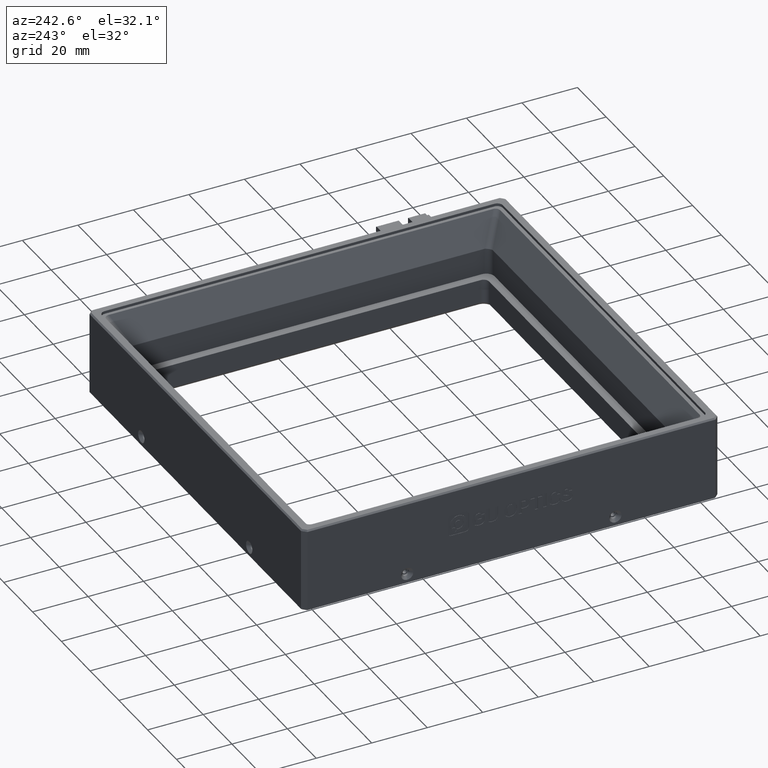
[diagram: clean part render]
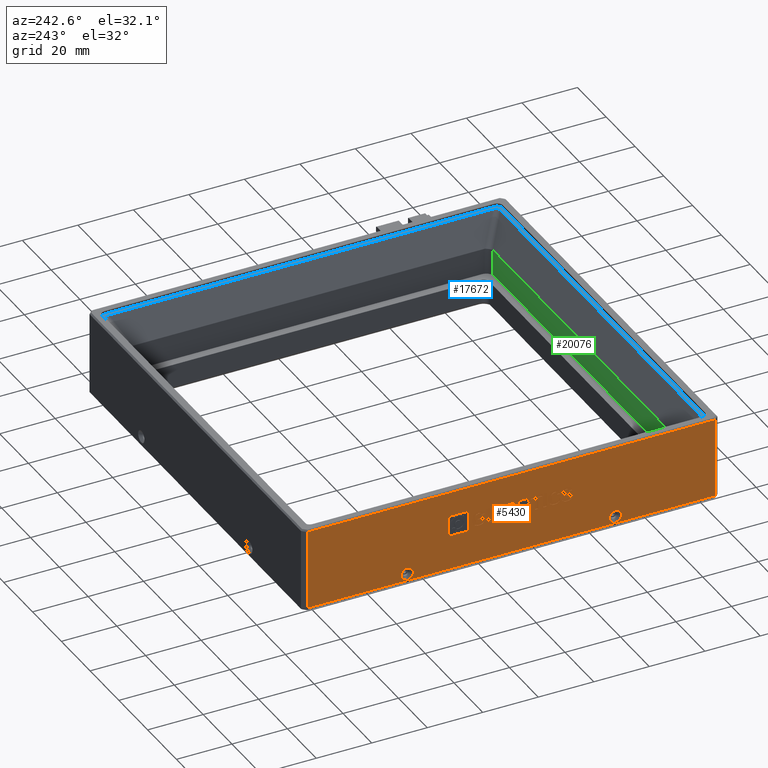
[diagram: same view with three faces highlighted in distinct colors, each labeled with its STEP entity id]
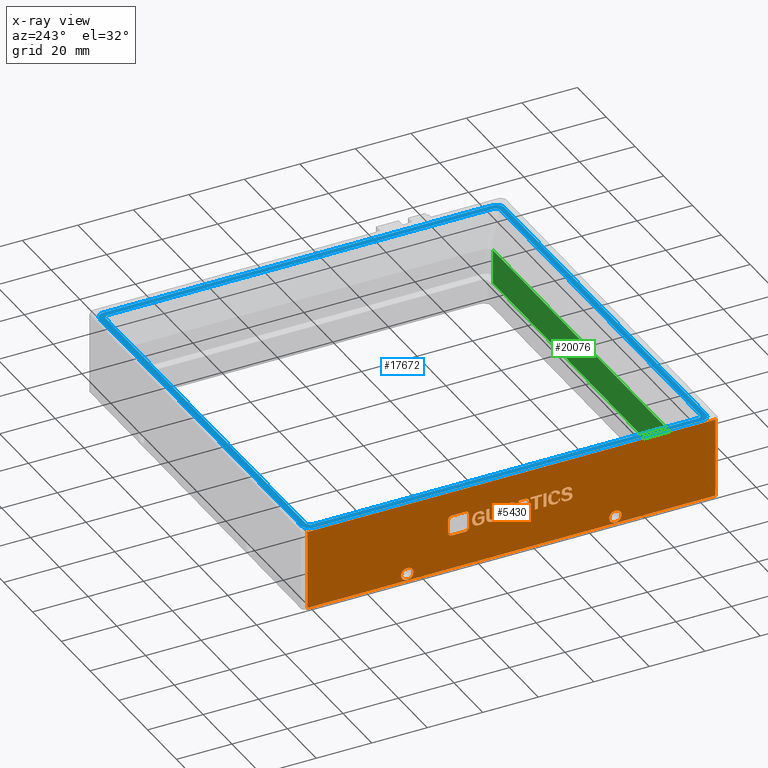
[diagram: x-ray of the same camera — body ghosted, the three highlighted faces saturated]
A machine part, auxiliary view with three faces highlighted in distinct colors.
The next image is the same camera in x-ray (body ghosted, the three faces saturated) — at least one of them is partly hidden behind the body in this view.
Their STEP definitions:

[orange] entity #5430 — the highlighted planar face has unit normal (1, -0, -0).
#31 = EDGE_CURVE ( 'NONE', #19384, #825, #15403, .T. ) ;
#94 = EDGE_LOOP ( 'NONE', ( #16986, #6992, #12238, #1950, #13257, #4764, #12222, #10624, #17987, #6341 ) ) ;
#105 = CARTESIAN_POINT ( 'NONE',  ( -84.83175061932287500, 13.25622952853821000, 13.67176819881195400 ) ) ;
#155 = ORIENTED_EDGE ( 'NONE', *, *, #5407, .F. ) ;
#157 = B_SPLINE_CURVE_WITH_KNOTS ( 'NONE', 3,
 ( #11757, #13151, #10606, #15329 ),
 .UNSPECIFIED., .F., .F.,
 ( 4, 4 ),
 ( 5.000000000000000000, 6.000000000000000000 ),
 .UNSPECIFIED. ) ;
#171 = CARTESIAN_POINT ( 'NONE',  ( -84.83175061932287500, 12.48229767348139800, 14.53987257955830600 ) ) ;
#191 = EDGE_CURVE ( 'NONE', #11709, #4064, #4574, .T. ) ;
#205 = FACE_BOUND ( 'NONE', #1702, .T. ) ;
#234 = VECTOR ( 'NONE', #2480, 1000.000000000000000 ) ;
#244 = EDGE_CURVE ( 'NONE', #7575, #7293, #15918, .T. ) ;
#247 = CARTESIAN_POINT ( 'NONE',  ( -84.83175061932287500, 11.00704077786217100, 14.60200075695144900 ) ) ;
#281 = CARTESIAN_POINT ( 'NONE',  ( -84.83175061932287500, 20.71215164860318200, 9.811303082532953500 ) ) ;
#282 = CARTESIAN_POINT ( 'NONE',  ( -84.83175061932287500, -11.12208307286800300, 13.04386122206766700 ) ) ;
#286 = CARTESIAN_POINT ( 'NONE',  ( -84.83175061932287500, -8.518648784063284300, 13.22990773369561000 ) ) ;
#296 = CARTESIAN_POINT ( 'NONE',  ( -84.83175061932287500, 33.52391684962783800, 14.22677928262672300 ) ) ;
#306 = CARTESIAN_POINT ( 'NONE',  ( -84.83175061932287500, 20.42267084817072800, 10.55548912904456100 ) ) ;
#307 = B_SPLINE_CURVE_WITH_KNOTS ( 'NONE', 3,
 ( #8270, #8208, #8168, #8095 ),
 .UNSPECIFIED., .F., .F.,
 ( 4, 4 ),
 ( 3.000000000000000000, 4.000000000000000000 ),
 .UNSPECIFIED. ) ;
#361 = CARTESIAN_POINT ( 'NONE',  ( -84.83175061932287500, -4.808805625599149800, 9.439210059277011000 ) ) ;
#374 = CARTESIAN_POINT ( 'NONE',  ( -84.83175061932287500, 22.46201644038247700, 10.11362866392827300 ) ) ;
#421 = VERTEX_POINT ( 'NONE', #15771 ) ;
#429 = CARTESIAN_POINT ( 'NONE',  ( -84.83175061932287500, -6.298259384387551800, 9.718279826718884400 ) ) ;
#473 = ORIENTED_EDGE ( 'NONE', *, *, #11033, .F. ) ;
#476 = EDGE_CURVE ( 'NONE', #12897, #9171, #2424, .T. ) ;
#487 = VECTOR ( 'NONE', #1885, 1000.000000000000000 ) ;
#492 = VERTEX_POINT ( 'NONE', #5439 ) ;
#499 = CARTESIAN_POINT ( 'NONE',  ( -84.83175061932287500, -6.717945701315899000, 10.27641936160256200 ) ) ;
#547 = ORIENTED_EDGE ( 'NONE', *, *, #20394, .F. ) ;
#561 = B_SPLINE_CURVE_WITH_KNOTS ( 'NONE', 3,
 ( #361, #2292, #429, #499 ),
 .UNSPECIFIED., .F., .F.,
 ( 4, 4 ),
 ( 6.000000000000000000, 7.000000000000000000 ),
 .UNSPECIFIED. ) ;
#588 = VERTEX_POINT ( 'NONE', #17657 ) ;
#621 = VERTEX_POINT ( 'NONE', #282 ) ;
#622 = CARTESIAN_POINT ( 'NONE',  ( -84.83175061932287500, 21.39900940955496400, 11.71827982671895500 ) ) ;
#627 = VERTEX_POINT ( 'NONE', #16369 ) ;
#631 = CARTESIAN_POINT ( 'NONE',  ( -84.83175061932287500, -7.838686642364979900, 9.703001297784279400 ) ) ;
#664 = DIRECTION ( 'NONE',  ( -0.0000000000000000000, 1.000000000000000000, -0.0000000000000000000 ) ) ;
#672 = VERTEX_POINT ( 'NONE', #16745 ) ;
#694 = LINE ( 'NONE', #3102, #12761 ) ;
#711 = DIRECTION ( 'NONE',  ( -0.0000000000000000000, 3.315249309644624600E-015, -1.000000000000000000 ) ) ;
#720 = EDGE_CURVE ( 'NONE', #17141, #1118, #157, .T. ) ;
#795 = B_SPLINE_CURVE_WITH_KNOTS ( 'NONE', 3,
 ( #10927, #1497, #12486, #3105 ),
 .UNSPECIFIED., .F., .F.,
 ( 4, 4 ),
 ( 11.00000000000000000, 12.00000000000000000 ),
 .UNSPECIFIED. ) ;
#825 = VERTEX_POINT ( 'NONE', #17781 ) ;
#831 = ORIENTED_EDGE ( 'NONE', *, *, #15162, .F. ) ;
#857 = ORIENTED_EDGE ( 'NONE', *, *, #15672, .F. ) ;
#859 = EDGE_CURVE ( 'NONE', #19471, #6478, #3520, .T. ) ;
#897 = CARTESIAN_POINT ( 'NONE',  ( -84.83175061932287500, -10.94847571754088900, 14.05150048653498000 ) ) ;
#906 = EDGE_CURVE ( 'NONE', #8500, #17141, #3600, .T. ) ;
#932 = B_SPLINE_CURVE_WITH_KNOTS ( 'NONE', 3,
 ( #7197, #18213, #8741, #19808 ),
 .UNSPECIFIED., .F., .F.,
 ( 4, 4 ),
 ( 2.000000000000000000, 3.000000000000000000 ),
 .UNSPECIFIED. ) ;
#957 = EDGE_LOOP ( 'NONE', ( #547, #16426, #1432, #2479 ) ) ;
#973 = LINE ( 'NONE', #9024, #17283 ) ;
#983 = DIRECTION ( 'NONE',  ( -0.0000000000000000000, 1.000000000000000000, 2.934251533065247700E-015 ) ) ;
#989 = EDGE_CURVE ( 'NONE', #10381, #2385, #16365, .T. ) ;
#1007 = CARTESIAN_POINT ( 'NONE',  ( -84.83175061932287500, 23.35898777623955200, 13.82658161146751200 ) ) ;
#1024 = EDGE_LOOP ( 'NONE', ( #18899, #17183, #14375, #7351 ) ) ;
#1108 = CARTESIAN_POINT ( 'NONE',  ( -84.83175061932287500, 21.39900940955496700, 10.88107052439342400 ) ) ;
#1118 = VERTEX_POINT ( 'NONE', #4240 ) ;
#1142 = EDGE_CURVE ( 'NONE', #15500, #11047, #10424, .T. ) ;
#1165 = VERTEX_POINT ( 'NONE', #4774 ) ;
#1196 = CIRCLE ( 'NONE', #4557, 2.200000000010919000 ) ;
#1208 = CARTESIAN_POINT ( 'NONE',  ( -84.83175061932287500, 1.244195996899737800, 9.532233315091037400 ) ) ;
#1310 = CARTESIAN_POINT ( 'NONE',  ( -84.83175061932287500, -7.499043592067671700, 14.12890719286271400 ) ) ;
#1377 = ORIENTED_EDGE ( 'NONE', *, *, #9715, .F. ) ;
#1379 = CARTESIAN_POINT ( 'NONE',  ( -84.83175061932287500, -5.661969497962391400, 13.57076765797898900 ) ) ;
#1391 = VERTEX_POINT ( 'NONE', #7448 ) ;
#1392 = CARTESIAN_POINT ( 'NONE',  ( -84.83175061932287500, -9.343013305426080000, 9.439210059276989600 ) ) ;
#1402 = DIRECTION ( 'NONE',  ( -0.0000000000000000000, -0.0000000000000000000, 1.000000000000000000 ) ) ;
#1412 = ORIENTED_EDGE ( 'NONE', *, *, #3814, .F. ) ;
#1420 = CARTESIAN_POINT ( 'NONE',  ( -84.83175061932287500, -10.17454386248417600, 10.34618680346304000 ) ) ;
#1432 = ORIENTED_EDGE ( 'NONE', *, *, #1887, .F. ) ;
#1497 = CARTESIAN_POINT ( 'NONE',  ( -84.83175061932287500, 24.81261135655332200, 10.36944261741661700 ) ) ;
#1512 = B_SPLINE_CURVE_WITH_KNOTS ( 'NONE', 3,
 ( #5756, #15124, #1007, #12046 ),
 .UNSPECIFIED., .F., .F.,
 ( 4, 4 ),
 ( 2.000000000000000000, 3.000000000000000000 ),
 .UNSPECIFIED. ) ;
#1519 = EDGE_CURVE ( 'NONE', #9171, #672, #561, .T. ) ;
#1524 = CARTESIAN_POINT ( 'NONE',  ( -84.83175061932287500, -1.923326988497837200, 9.532233315091023200 ) ) ;
#1541 = EDGE_CURVE ( 'NONE', #12383, #3700, #3616, .T. ) ;
#1551 = VECTOR ( 'NONE', #13917, 1000.000000000000000 ) ;
#1568 = CARTESIAN_POINT ( 'NONE',  ( -84.83175061932287500, 32.16433905218630000, 8.401316007795665900 ) ) ;
#1574 = CARTESIAN_POINT ( 'NONE',  ( -84.83175061932287500, -9.191174473625164200, 10.09037284997464600 ) ) ;
#1612 = B_SPLINE_CURVE_WITH_KNOTS ( 'NONE', 3,
 ( #18789, #9034, #8049, #8252 ),
 .UNSPECIFIED., .F., .F.,
 ( 4, 4 ),
 ( 4.000000000000000000, 5.000000000000000000 ),
 .UNSPECIFIED. ) ;
#1629 = VERTEX_POINT ( 'NONE', #2436 ) ;
#1648 = CARTESIAN_POINT ( 'NONE',  ( -84.83175061932287500, 32.16433905218630000, 8.401316007795665900 ) ) ;
#1692 = EDGE_CURVE ( 'NONE', #2587, #7575, #7744, .T. ) ;
#1702 = EDGE_LOOP ( 'NONE', ( #13952, #15551, #4844, #19191, #18593, #10741, #15002, #17852 ) ) ;
#1717 = CARTESIAN_POINT ( 'NONE',  ( -84.83175061932287500, -4.808805625599149800, 9.439210059277011000 ) ) ;
#1758 = LINE ( 'NONE', #16484, #5467 ) ;
#1777 = LINE ( 'NONE', #9288, #5485 ) ;
#1823 = EDGE_LOOP ( 'NONE', ( #11254, #2542, #155, #15475, #473, #9048, #1412, #6538, #19753, #11765, #18053, #12243, #3866, #18159 ) ) ;
#1838 = EDGE_CURVE ( 'NONE', #3075, #3481, #6931, .T. ) ;
#1859 = VERTEX_POINT ( 'NONE', #14158 ) ;
#1885 = DIRECTION ( 'NONE',  ( -0.0000000000000000000, 4.972873964466584800E-015, -1.000000000000000000 ) ) ;
#1887 = EDGE_CURVE ( 'NONE', #4622, #18908, #18082, .T. ) ;
#1942 = DIRECTION ( 'NONE',  ( 0.0000000000000000000, 0.0000000000000000000, 1.000000000000000000 ) ) ;
#1950 = ORIENTED_EDGE ( 'NONE', *, *, #989, .F. ) ;
#1995 = VERTEX_POINT ( 'NONE', #4478 ) ;
#2080 = LINE ( 'NONE', #15497, #1551 ) ;
#2147 = VECTOR ( 'NONE', #711, 1000.000000000000000 ) ;
#2200 = VERTEX_POINT ( 'NONE', #11011 ) ;
#2245 = CIRCLE ( 'NONE', #5316, 2.200000000010919000 ) ;
#2267 = CARTESIAN_POINT ( 'NONE',  ( -84.83175061932287500, -9.343013305426080000, 9.439210059276989600 ) ) ;
#2292 = CARTESIAN_POINT ( 'NONE',  ( -84.83175061932287500, -5.661969497962377100, 9.439210059277003900 ) ) ;
#2375 = CARTESIAN_POINT ( 'NONE',  ( -84.83175061932287500, -0.9035865882819508200, 14.53223331509097300 ) ) ;
#2385 = VERTEX_POINT ( 'NONE', #12999 ) ;
#2424 = B_SPLINE_CURVE_WITH_KNOTS ( 'NONE', 3,
 ( #8993, #6783, #6552, #6515 ),
 .UNSPECIFIED., .F., .F.,
 ( 4, 4 ),
 ( 7.000000000000000000, 8.000000000000000000 ),
 .UNSPECIFIED. ) ;
#2436 = CARTESIAN_POINT ( 'NONE',  ( -84.83175061932287500, -6.717945701315899000, 11.22990773369558700 ) ) ;
#2452 = DIRECTION ( 'NONE',  ( -0.0000000000000000000, 1.000000000000000000, 3.439221237990939000E-015 ) ) ;
#2479 = ORIENTED_EDGE ( 'NONE', *, *, #19333, .F. ) ;
#2480 = DIRECTION ( 'NONE',  ( -0.0000000000000000000, -1.000000000000000000, -6.952995436025848100E-015 ) ) ;
#2507 = DIRECTION ( 'NONE',  ( -1.000000000000000000, -1.665334536937734600E-016, 0.0000000000000000000 ) ) ;
#2512 = EDGE_LOOP ( 'NONE', ( #9392, #11220, #4388, #831, #12685, #12776, #13031, #18212, #5132, #14295 ) ) ;
#2518 = CARTESIAN_POINT ( 'NONE',  ( -84.83175061932287500, -9.212942997151156300, 14.60200075695138000 ) ) ;
#2542 = ORIENTED_EDGE ( 'NONE', *, *, #10649, .F. ) ;
#2553 = VERTEX_POINT ( 'NONE', #16294 ) ;
#2587 = VERTEX_POINT ( 'NONE', #19077 ) ;
#2589 = CARTESIAN_POINT ( 'NONE',  ( -84.83175061932287500, 24.87021005855437700, 12.04386122206779100 ) ) ;
#2645 = CARTESIAN_POINT ( 'NONE',  ( -84.83175061932287500, 26.06706637075662100, 14.49865679564571500 ) ) ;
#2693 = CARTESIAN_POINT ( 'NONE',  ( -84.83175061932287500, -6.826517902505555600, 12.95083796625379200 ) ) ;
#2713 = DIRECTION ( 'NONE',  ( -0.0000000000000000000, -1.000000000000000000, -0.0000000000000000000 ) ) ;
#2733 = LINE ( 'NONE', #11853, #6467 ) ;
#2748 = CARTESIAN_POINT ( 'NONE',  ( -84.83175061932287500, 8.787057002848307300, 13.64053509983952800 ) ) ;
#2751 = EDGE_CURVE ( 'NONE', #588, #13256, #6263, .T. ) ;
#2830 = DIRECTION ( 'NONE',  ( -0.0000000000000000000, -1.000000000000000000, -0.0000000000000000000 ) ) ;
#2859 = VERTEX_POINT ( 'NONE', #8963 ) ;
#2937 = CARTESIAN_POINT ( 'NONE',  ( -84.83175061932287500, -7.455641753235773300, 13.22990773369561000 ) ) ;
#2938 = CARTESIAN_POINT ( 'NONE',  ( -84.83175061932287500, -7.347069552046227700, 10.36944261741650700 ) ) ;
#2991 = EDGE_CURVE ( 'NONE', #5844, #7343, #10479, .T. ) ;
#3052 = EDGE_CURVE ( 'NONE', #3140, #16531, #1196, .T. ) ;
#3075 = VERTEX_POINT ( 'NONE', #4272 ) ;
#3083 = CARTESIAN_POINT ( 'NONE',  ( -84.83175061932287500, -4.765403786767279800, 14.60200075695140100 ) ) ;
#3102 = CARTESIAN_POINT ( 'NONE',  ( -84.83175061932287500, -62.75061932287366800, -3.999999999999937800 ) ) ;
#3105 = CARTESIAN_POINT ( 'NONE',  ( -84.83175061932287500, 22.48364975568806300, 9.439210059277099800 ) ) ;
#3140 = VERTEX_POINT ( 'NONE', #4030 ) ;
#3160 = CARTESIAN_POINT ( 'NONE',  ( -84.83175061932287500, 20.44443937169680600, 13.13688447788175600 ) ) ;
#3188 = CARTESIAN_POINT ( 'NONE',  ( -84.83175061932287500, 33.52391684962785200, 8.863514575166869100 ) ) ;
#3261 = CARTESIAN_POINT ( 'NONE',  ( -84.83175061932287500, 26.06706637075662100, 14.49865679564571500 ) ) ;
#3293 = CARTESIAN_POINT ( 'NONE',  ( -84.83175061932287500, 17.66739772756464400, 9.439210059277092700 ) ) ;
#3371 = VERTEX_POINT ( 'NONE', #374 ) ;
#3378 = VECTOR ( 'NONE', #10736, 1000.000000000000000 ) ;
#3379 = VECTOR ( 'NONE', #3701, 1000.000000000000000 ) ;
#3481 = VERTEX_POINT ( 'NONE', #2589 ) ;
#3508 = VECTOR ( 'NONE', #4059, 1000.000000000000000 ) ;
#3520 = B_SPLINE_CURVE_WITH_KNOTS ( 'NONE', 3,
 ( #13369, #17970, #19593, #13886 ),
 .UNSPECIFIED., .F., .F.,
 ( 4, 4 ),
 ( 0.0000000000000000000, 1.000000000000000000 ),
 .UNSPECIFIED. ) ;
#3522 = VERTEX_POINT ( 'NONE', #2937 ) ;
#3571 = CARTESIAN_POINT ( 'NONE',  ( -84.83175061932287500, -5.047448135063860700, 10.11362866392817500 ) ) ;
#3576 = EDGE_CURVE ( 'NONE', #1118, #11725, #15982, .T. ) ;
#3591 = EDGE_CURVE ( 'NONE', #2200, #10564, #1612, .T. ) ;
#3600 = LINE ( 'NONE', #17425, #7748 ) ;
#3616 = LINE ( 'NONE', #11689, #7268 ) ;
#3624 = VERTEX_POINT ( 'NONE', #7637 ) ;
#3655 = B_SPLINE_CURVE_WITH_KNOTS ( 'NONE', 3,
 ( #18459, #2748, #13708, #4334 ),
 .UNSPECIFIED., .F., .F.,
 ( 4, 4 ),
 ( 3.000000000000000000, 4.000000000000000000 ),
 .UNSPECIFIED. ) ;
#3685 = VECTOR ( 'NONE', #1402, 1000.000000000000000 ) ;
#3700 = VERTEX_POINT ( 'NONE', #1108 ) ;
#3701 = DIRECTION ( 'NONE',  ( -0.0000000000000000000, -4.163336342344379600E-015, 1.000000000000000000 ) ) ;
#3739 = EDGE_CURVE ( 'NONE', #5262, #4234, #6308, .T. ) ;
#3794 = VECTOR ( 'NONE', #7617, 1000.000000000000000 ) ;
#3814 = EDGE_CURVE ( 'NONE', #3700, #3371, #13896, .T. ) ;
#3841 = CARTESIAN_POINT ( 'NONE',  ( -84.83175061932287500, -4.765403786767279800, 14.60200075695140100 ) ) ;
#3854 = CARTESIAN_POINT ( 'NONE',  ( -84.83175061930016600, 48.24938067712633200, 0.7000000000109765100 ) ) ;
#3863 = LINE ( 'NONE', #10455, #12159 ) ;
#3866 = ORIENTED_EDGE ( 'NONE', *, *, #2991, .F. ) ;
#3873 = ORIENTED_EDGE ( 'NONE', *, *, #11645, .F. ) ;
#3874 = CARTESIAN_POINT ( 'NONE',  ( -84.83175061932287500, -5.907778043122385200, 14.58638420746519200 ) ) ;
#3937 = VECTOR ( 'NONE', #16333, 1000.000000000000000 ) ;
#3941 = FACE_BOUND ( 'NONE', #1823, .T. ) ;
#3987 = LINE ( 'NONE', #4782, #11329 ) ;
#4005 = CARTESIAN_POINT ( 'NONE',  ( -84.83175061932287500, 27.42652185389859900, 8.401316007795651700 ) ) ;
#4030 = CARTESIAN_POINT ( 'NONE',  ( -84.83175061930013800, -26.75061932287366800, -3.700000000010861300 ) ) ;
#4059 = DIRECTION ( 'NONE',  ( -0.0000000000000000000, -3.978299171573648300E-015, 1.000000000000000000 ) ) ;
#4064 = VERTEX_POINT ( 'NONE', #11880 ) ;
#4070 = CARTESIAN_POINT ( 'NONE',  ( -84.83175061932287500, 22.54882011804602400, 13.90432633834685900 ) ) ;
#4092 = CARTESIAN_POINT ( 'NONE',  ( -84.83175061932287500, -6.594906220515411200, 14.03588393704877100 ) ) ;
#4183 = DIRECTION ( 'NONE',  ( -0.0000000000000000000, -0.0000000000000000000, -1.000000000000000000 ) ) ;
#4184 = B_SPLINE_CURVE_WITH_KNOTS ( 'NONE', 3,
 ( #9592, #9641, #9518, #9494 ),
 .UNSPECIFIED., .F., .F.,
 ( 4, 4 ),
 ( 6.000000000000000000, 7.000000000000000000 ),
 .UNSPECIFIED. ) ;
#4204 = VERTEX_POINT ( 'NONE', #12370 ) ;
#4234 = VERTEX_POINT ( 'NONE', #12438 ) ;
#4240 = CARTESIAN_POINT ( 'NONE',  ( -84.83175061932287500, 26.06706637075662100, 9.760839477671146000 ) ) ;
#4272 = CARTESIAN_POINT ( 'NONE',  ( -84.83175061932287500, 22.54882011804602400, 14.60200075695149200 ) ) ;
#4327 = ORIENTED_EDGE ( 'NONE', *, *, #20109, .F. ) ;
#4331 = ORIENTED_EDGE ( 'NONE', *, *, #17095, .F. ) ;
#4334 = CARTESIAN_POINT ( 'NONE',  ( -84.83175061932287500, 11.00704077786217100, 14.60200075695144900 ) ) ;
#4354 = CARTESIAN_POINT ( 'NONE',  ( -84.83175061932287500, 7.015153271101805600, 9.532233315091051700 ) ) ;
#4372 = ORIENTED_EDGE ( 'NONE', *, *, #7137, .F. ) ;
#4388 = ORIENTED_EDGE ( 'NONE', *, *, #31, .F. ) ;
#4411 = FACE_BOUND ( 'NONE', #5507, .T. ) ;
#4428 = DIRECTION ( 'NONE',  ( -0.0000000000000000000, 1.000000000000000000, 2.929152229180571400E-015 ) ) ;
#4467 = CARTESIAN_POINT ( 'NONE',  ( -84.83175061932287500, -8.084765603965886200, 14.58638420746518500 ) ) ;
#4478 = CARTESIAN_POINT ( 'NONE',  ( -84.83175061932287500, 3.825861762177902300, 13.83455889648633400 ) ) ;
#4516 = CARTESIAN_POINT ( 'NONE',  ( -84.83175061932287500, -6.826517902505555600, 12.95083796625379200 ) ) ;
#4539 = CARTESIAN_POINT ( 'NONE',  ( -84.83175061932287500, -9.343013305426092400, 12.50897750113742800 ) ) ;
#4557 = AXIS2_PLACEMENT_3D ( 'NONE', #10241, #5787, #1942 ) ;
#4567 = DIRECTION ( 'NONE',  ( -0.0000000000000000000, -1.000000000000000000, -6.805471331826086300E-015 ) ) ;
#4574 = B_SPLINE_CURVE_WITH_KNOTS ( 'NONE', 3,
 ( #6107, #9773, #6305, #10004 ),
 .UNSPECIFIED., .F., .F.,
 ( 4, 4 ),
 ( 1.000000000000000000, 2.000000000000000000 ),
 .UNSPECIFIED. ) ;
#4575 = DIRECTION ( 'NONE',  ( -1.850371707708597500E-017, -1.000000000000000000, 0.0000000000000000000 ) ) ;
#4609 = CARTESIAN_POINT ( 'NONE',  ( -84.83175061932287500, -10.61559307827620600, 12.24518626263014600 ) ) ;
#4622 = VERTEX_POINT ( 'NONE', #8254 ) ;
#4637 = CARTESIAN_POINT ( 'NONE',  ( -84.83175061932287500, -9.842066847881470800, 10.09037284997464600 ) ) ;
#4656 = ORIENTED_EDGE ( 'NONE', *, *, #5598, .F. ) ;
#4673 = CARTESIAN_POINT ( 'NONE',  ( -84.83175061932287500, -2.603018713755027600, 13.64851238485843900 ) ) ;
#4694 = DIRECTION ( 'NONE',  ( 0.0000000000000000000, 0.0000000000000000000, -1.000000000000000000 ) ) ;
#4707 = B_SPLINE_CURVE_WITH_KNOTS ( 'NONE', 3,
 ( #18241, #897, #11940, #2518 ),
 .UNSPECIFIED., .F., .F.,
 ( 4, 4 ),
 ( 6.000000000000000000, 7.000000000000000000 ),
 .UNSPECIFIED. ) ;
#4764 = ORIENTED_EDGE ( 'NONE', *, *, #8787, .F. ) ;
#4774 = CARTESIAN_POINT ( 'NONE',  ( -84.83175061932287500, 15.54124845768911100, 11.69502401276547400 ) ) ;
#4782 = CARTESIAN_POINT ( 'NONE',  ( -84.83175061932287500, 16.58262217321103200, 14.53223331509103600 ) ) ;
#4844 = ORIENTED_EDGE ( 'NONE', *, *, #7896, .F. ) ;
#4896 = VERTEX_POINT ( 'NONE', #7694 ) ;
#4914 = FACE_BOUND ( 'NONE', #2512, .T. ) ;
#5052 = EDGE_LOOP ( 'NONE', ( #8718, #16031 ) ) ;
#5083 = B_SPLINE_CURVE_WITH_KNOTS ( 'NONE', 3,
 ( #16515, #18105, #8644, #19701 ),
 .UNSPECIFIED., .F., .F.,
 ( 4, 4 ),
 ( 3.000000000000000000, 4.000000000000000000 ),
 .UNSPECIFIED. ) ;
#5103 = CARTESIAN_POINT ( 'NONE',  ( -84.83175061932287500, -11.25228858936311500, 10.92758215230025300 ) ) ;
#5119 = CARTESIAN_POINT ( 'NONE',  ( -84.83175061932287500, -11.25228858936312200, 11.71827982671883800 ) ) ;
#5120 = EDGE_CURVE ( 'NONE', #6012, #13327, #18275, .T. ) ;
#5132 = ORIENTED_EDGE ( 'NONE', *, *, #1519, .F. ) ;
#5159 = EDGE_CURVE ( 'NONE', #627, #621, #12757, .T. ) ;
#5162 = CARTESIAN_POINT ( 'NONE',  ( -84.83175061932287500, 13.32843071837041600, 11.99734959416078100 ) ) ;
#5173 = CARTESIAN_POINT ( 'NONE',  ( -84.83175061932287500, 11.00704077786217100, 14.60200075695144900 ) ) ;
#5226 = EDGE_CURVE ( 'NONE', #18908, #16645, #15471, .T. ) ;
#5229 = B_SPLINE_CURVE_WITH_KNOTS ( 'NONE', 3,
 ( #15817, #15891, #8050, #19069 ),
 .UNSPECIFIED., .F., .F.,
 ( 4, 4 ),
 ( 1.000000000000000000, 2.000000000000000000 ),
 .UNSPECIFIED. ) ;
#5241 = VECTOR ( 'NONE', #8436, 1000.000000000000000 ) ;
#5255 = CARTESIAN_POINT ( 'NONE',  ( -84.83175061932287500, 7.015153271101798500, 11.27641936160260400 ) ) ;
#5262 = VERTEX_POINT ( 'NONE', #5173 ) ;
#5304 = VERTEX_POINT ( 'NONE', #20445 ) ;
#5316 = AXIS2_PLACEMENT_3D ( 'NONE', #14738, #5337, #16345 ) ;
#5337 = DIRECTION ( 'NONE',  ( -1.000000000000000000, -1.665334536937734600E-016, 0.0000000000000000000 ) ) ;
#5407 = EDGE_CURVE ( 'NONE', #4204, #1859, #13706, .T. ) ;
#5430 = ADVANCED_FACE ( 'NONE', ( #8572, #4914, #4411, #16962, #205, #16477, #12237, #8112, #3941, #20190, #15984, #11758 ), #16766, .F. ) ;
#5439 = CARTESIAN_POINT ( 'NONE',  ( -84.83175061932287500, 1.244195996899717200, 13.83455889648632600 ) ) ;
#5467 = VECTOR ( 'NONE', #8612, 1000.000000000000000 ) ;
#5485 = VECTOR ( 'NONE', #9743, 1000.000000000000000 ) ;
#5507 = EDGE_LOOP ( 'NONE', ( #5516, #15108, #1377, #8632, #3873, #10770, #18312, #10302, #6681, #17964, #11060, #4331, #13982, #18645 ) ) ;
#5511 = CARTESIAN_POINT ( 'NONE',  ( -84.83175061932287500, -8.518648784063284300, 13.22990773369561000 ) ) ;
#5516 = ORIENTED_EDGE ( 'NONE', *, *, #5120, .F. ) ;
#5533 = VECTOR ( 'NONE', #12418, 1000.000000000000000 ) ;
#5549 = EDGE_LOOP ( 'NONE', ( #4656, #857 ) ) ;
#5557 = EDGE_CURVE ( 'NONE', #13256, #1165, #16814, .T. ) ;
#5598 = EDGE_CURVE ( 'NONE', #9552, #10086, #10055, .T. ) ;
#5668 = VERTEX_POINT ( 'NONE', #11656 ) ;
#5728 = CARTESIAN_POINT ( 'NONE',  ( -84.83175061932287500, 15.54124845768910000, 14.53223331509103600 ) ) ;
#5756 = CARTESIAN_POINT ( 'NONE',  ( -84.83175061932287500, 23.82883634303289000, 12.02060540811433100 ) ) ;
#5783 = EDGE_CURVE ( 'NONE', #16873, #2859, #307, .T. ) ;
#5787 = DIRECTION ( 'NONE',  ( -1.000000000000000000, -1.665334536937734600E-016, 0.0000000000000000000 ) ) ;
#5844 = VERTEX_POINT ( 'NONE', #7428 ) ;
#5892 = EDGE_CURVE ( 'NONE', #13327, #19617, #9680, .T. ) ;
#5989 = ORIENTED_EDGE ( 'NONE', *, *, #3576, .F. ) ;
#5990 = DIRECTION ( 'NONE',  ( -0.0000000000000000000, -1.000000000000000000, -0.0000000000000000000 ) ) ;
#6012 = VERTEX_POINT ( 'NONE', #1392 ) ;
#6044 = CARTESIAN_POINT ( 'NONE',  ( -84.83175061932287500, 1.244195996899717200, 13.83455889648632600 ) ) ;
#6104 = CARTESIAN_POINT ( 'NONE',  ( -84.83175061932287500, 20.42267084817072800, 10.55548912904456100 ) ) ;
#6106 = CARTESIAN_POINT ( 'NONE',  ( -84.83175061932287500, 20.42267084817072100, 12.41595424532363600 ) ) ;
#6107 = CARTESIAN_POINT ( 'NONE',  ( -84.83175061932287500, -9.191174473625164200, 10.09037284997464600 ) ) ;
#6136 = CARTESIAN_POINT ( 'NONE',  ( -84.83175061932287500, 18.70877144308656200, 14.53223331509104300 ) ) ;
#6146 = VERTEX_POINT ( 'NONE', #6106 ) ;
#6167 = B_SPLINE_CURVE_WITH_KNOTS ( 'NONE', 3,
 ( #13244, #14865, #16475, #7046 ),
 .UNSPECIFIED., .F., .F.,
 ( 4, 4 ),
 ( 8.000000000000000000, 9.000000000000000000 ),
 .UNSPECIFIED. ) ;
#6179 = CARTESIAN_POINT ( 'NONE',  ( -84.83175061932287500, -4.765403786767279800, 14.60200075695140100 ) ) ;
#6200 = LINE ( 'NONE', #11971, #13500 ) ;
#6246 = VECTOR ( 'NONE', #5990, 1000.000000000000000 ) ;
#6263 = B_SPLINE_CURVE_WITH_KNOTS ( 'NONE', 3,
 ( #19334, #19822, #19291, #9479 ),
 .UNSPECIFIED., .F., .F.,
 ( 4, 4 ),
 ( 9.000000000000000000, 10.00000000000000000 ),
 .UNSPECIFIED. ) ;
#6264 = VECTOR ( 'NONE', #4567, 1000.000000000000000 ) ;
#6282 = CARTESIAN_POINT ( 'NONE',  ( -84.83175061932287500, 22.48364975568806300, 9.439210059277099800 ) ) ;
#6304 = EDGE_CURVE ( 'NONE', #14025, #6909, #1777, .T. ) ;
#6305 = CARTESIAN_POINT ( 'NONE',  ( -84.83175061932287500, -7.882088481196871200, 10.49336095165125800 ) ) ;
#6308 = B_SPLINE_CURVE_WITH_KNOTS ( 'NONE', 3,
 ( #247, #171, #105, #5162 ),
 .UNSPECIFIED., .F., .F.,
 ( 4, 4 ),
 ( 2.000000000000000000, 3.000000000000000000 ),
 .UNSPECIFIED. ) ;
#6341 = ORIENTED_EDGE ( 'NONE', *, *, #10268, .F. ) ;
#6351 = CARTESIAN_POINT ( 'NONE',  ( -84.83175061932287500, 19.75014515860861800, 11.64851238485851300 ) ) ;
#6466 = EDGE_LOOP ( 'NONE', ( #11554, #4372, #14027, #20391, #14429, #7834, #18263 ) ) ;
#6467 = VECTOR ( 'NONE', #16562, 1000.000000000000000 ) ;
#6478 = VERTEX_POINT ( 'NONE', #13142 ) ;
#6515 = CARTESIAN_POINT ( 'NONE',  ( -84.83175061932287500, -4.808805625599149800, 9.439210059277011000 ) ) ;
#6538 = ORIENTED_EDGE ( 'NONE', *, *, #1541, .F. ) ;
#6552 = CARTESIAN_POINT ( 'NONE',  ( -84.83175061932287500, -3.362348080980454200, 9.516954786156446700 ) ) ;
#6626 = LINE ( 'NONE', #15243, #14480 ) ;
#6663 = EDGE_CURVE ( 'NONE', #8964, #17133, #17808, .T. ) ;
#6665 = B_SPLINE_CURVE_WITH_KNOTS ( 'NONE', 3,
 ( #10109, #631, #11658, #2267 ),
 .UNSPECIFIED., .F., .F.,
 ( 4, 4 ),
 ( 13.00000000000000000, 14.00000000000000000 ),
 .UNSPECIFIED. ) ;
#6681 = ORIENTED_EDGE ( 'NONE', *, *, #11973, .F. ) ;
#6706 = CARTESIAN_POINT ( 'NONE',  ( -84.83175061932287500, -1.923326988497857900, 14.53223331509097300 ) ) ;
#6756 = EDGE_CURVE ( 'NONE', #14532, #10586, #15722, .T. ) ;
#6760 = CARTESIAN_POINT ( 'NONE',  ( -84.83175061932287500, 84.24938067712626800, -3.999999999999937800 ) ) ;
#6783 = CARTESIAN_POINT ( 'NONE',  ( -84.83175061932287500, -2.603018713755013800, 10.37708188188381300 ) ) ;
#6847 = EDGE_CURVE ( 'NONE', #3371, #3624, #9388, .T. ) ;
#6904 = CARTESIAN_POINT ( 'NONE',  ( -84.83175061932287500, 18.70877144308656200, 14.53223331509104300 ) ) ;
#6909 = VERTEX_POINT ( 'NONE', #14393 ) ;
#6931 = B_SPLINE_CURVE_WITH_KNOTS ( 'NONE', 3,
 ( #12554, #12280, #12213, #15762 ),
 .UNSPECIFIED., .F., .F.,
 ( 4, 4 ),
 ( 12.00000000000000000, 13.00000000000000000 ),
 .UNSPECIFIED. ) ;
#6973 = CARTESIAN_POINT ( 'NONE',  ( -84.83175061930016600, 48.24938067712633200, -3.700000000010861300 ) ) ;
#6992 = ORIENTED_EDGE ( 'NONE', *, *, #2751, .F. ) ;
#7036 = EDGE_CURVE ( 'NONE', #10707, #8511, #7916, .T. ) ;
#7046 = CARTESIAN_POINT ( 'NONE',  ( -84.83175061932287500, -10.12411119617807400, 13.04386122206767400 ) ) ;
#7061 = VERTEX_POINT ( 'NONE', #10798 ) ;
#7110 = CARTESIAN_POINT ( 'NONE',  ( -84.83175061932287500, 33.52391684962785200, 9.760839477671174400 ) ) ;
#7137 = EDGE_CURVE ( 'NONE', #16297, #14532, #4184, .T. ) ;
#7197 = CARTESIAN_POINT ( 'NONE',  ( -84.83175061932287500, -3.593824554750111300, 11.97409378020723000 ) ) ;
#7199 = CARTESIAN_POINT ( 'NONE',  ( -84.83175061932287500, 21.52907971782978800, 13.13688447788176300 ) ) ;
#7268 = VECTOR ( 'NONE', #11746, 1000.000000000000000 ) ;
#7293 = VERTEX_POINT ( 'NONE', #7110 ) ;
#7343 = VERTEX_POINT ( 'NONE', #6104 ) ;
#7351 = ORIENTED_EDGE ( 'NONE', *, *, #859, .F. ) ;
#7420 = CARTESIAN_POINT ( 'NONE',  ( -84.83175061932287500, 27.42652185389857100, 15.85816667504278500 ) ) ;
#7428 = CARTESIAN_POINT ( 'NONE',  ( -84.83175061932287500, 22.48364975568806300, 9.439210059277099800 ) ) ;
#7435 = EDGE_CURVE ( 'NONE', #825, #15381, #20293, .T. ) ;
#7448 = CARTESIAN_POINT ( 'NONE',  ( -84.83175061932287500, 18.70877144308657200, 11.39269843137016900 ) ) ;
#7545 = VECTOR ( 'NONE', #2452, 1000.000000000000000 ) ;
#7575 = VERTEX_POINT ( 'NONE', #296 ) ;
#7617 = DIRECTION ( 'NONE',  ( -0.0000000000000000000, -4.838471965427270300E-015, 1.000000000000000000 ) ) ;
#7636 = VECTOR ( 'NONE', #8261, 1000.000000000000000 ) ;
#7637 = CARTESIAN_POINT ( 'NONE',  ( -84.83175061932287500, 23.82883634303289000, 12.02060540811433100 ) ) ;
#7694 = CARTESIAN_POINT ( 'NONE',  ( -84.83175061932287500, -0.2960960528572023100, 13.83455889648631900 ) ) ;
#7700 = CARTESIAN_POINT ( 'NONE',  ( -84.83175061932287500, -5.336658519054975800, 13.88107052439330100 ) ) ;
#7744 = B_SPLINE_CURVE_WITH_KNOTS ( 'NONE', 3,
 ( #11191, #10373, #10296, #11262 ),
 .UNSPECIFIED., .F., .F.,
 ( 4, 4 ),
 ( 1.000000000000000000, 2.000000000000000000 ),
 .UNSPECIFIED. ) ;
#7745 = CARTESIAN_POINT ( 'NONE',  ( -84.83175061932287500, -64.25061932287366100, 24.70000000000007000 ) ) ;
#7748 = VECTOR ( 'NONE', #16870, 1000.000000000000000 ) ;
#7834 = ORIENTED_EDGE ( 'NONE', *, *, #13130, .F. ) ;
#7837 = B_SPLINE_CURVE_WITH_KNOTS ( 'NONE', 3,
 ( #18704, #7700, #1379, #12384 ),
 .UNSPECIFIED., .F., .F.,
 ( 4, 4 ),
 ( 1.000000000000000000, 2.000000000000000000 ),
 .UNSPECIFIED. ) ;
#7877 = B_SPLINE_CURVE_WITH_KNOTS ( 'NONE', 3,
 ( #4070, #15009, #16626, #7199 ),
 .UNSPECIFIED., .F., .F.,
 ( 4, 4 ),
 ( 1.000000000000000000, 2.000000000000000000 ),
 .UNSPECIFIED. ) ;
#7896 = EDGE_CURVE ( 'NONE', #492, #4896, #14827, .T. ) ;
#7911 = CARTESIAN_POINT ( 'NONE',  ( -84.83175061932287500, -9.299746674814931800, 11.62525657090489300 ) ) ;
#7916 = LINE ( 'NONE', #11502, #12047 ) ;
#7934 = DIRECTION ( 'NONE',  ( -0.0000000000000000000, 3.609344006467900200E-015, -1.000000000000000000 ) ) ;
#7983 = CARTESIAN_POINT ( 'NONE',  ( -84.83175061932287500, 22.54882011804602400, 14.60200075695149200 ) ) ;
#8019 = LINE ( 'NONE', #19477, #11664 ) ;
#8049 = CARTESIAN_POINT ( 'NONE',  ( -84.83175061932287500, 16.90806836033898000, 10.08239556495579100 ) ) ;
#8050 = CARTESIAN_POINT ( 'NONE',  ( -84.83175061932287500, 12.48229767348141400, 9.532233315091073000 ) ) ;
#8083 = VECTOR ( 'NONE', #2830, 1000.000000000000000 ) ;
#8084 = CARTESIAN_POINT ( 'NONE',  ( -84.83175061932287500, -9.343013305426092400, 12.50897750113742800 ) ) ;
#8095 = CARTESIAN_POINT ( 'NONE',  ( -84.83175061932287500, -3.593824554750111300, 11.97409378020723000 ) ) ;
#8112 = FACE_BOUND ( 'NONE', #94, .T. ) ;
#8114 = CARTESIAN_POINT ( 'NONE',  ( -84.83175061932287500, 21.55828469349196700, 10.35382606793043600 ) ) ;
#8168 = CARTESIAN_POINT ( 'NONE',  ( -84.83175061932287500, -3.622759113971143000, 10.79568653304664000 ) ) ;
#8185 = CARTESIAN_POINT ( 'NONE',  ( -84.83175061932287500, 21.39900940955496700, 10.88107052439342400 ) ) ;
#8208 = CARTESIAN_POINT ( 'NONE',  ( -84.83175061932287500, -4.107074960374769800, 10.17541882076970200 ) ) ;
#8252 = CARTESIAN_POINT ( 'NONE',  ( -84.83175061932287500, 17.64576441225906600, 10.11362866392825800 ) ) ;
#8254 = CARTESIAN_POINT ( 'NONE',  ( -84.83175061932284700, -62.75061932287369600, -3.999999999999937800 ) ) ;
#8261 = DIRECTION ( 'NONE',  ( -0.0000000000000000000, -0.0000000000000000000, 1.000000000000000000 ) ) ;
#8270 = CARTESIAN_POINT ( 'NONE',  ( -84.83175061932287500, -5.047448135063860700, 10.11362866392817500 ) ) ;
#8272 = EDGE_CURVE ( 'NONE', #7343, #6146, #973, .T. ) ;
#8436 = DIRECTION ( 'NONE',  ( -0.0000000000000000000, -1.000000000000000000, -4.504920936911468800E-015 ) ) ;
#8480 = VECTOR ( 'NONE', #7934, 1000.000000000000000 ) ;
#8500 = VERTEX_POINT ( 'NONE', #1568 ) ;
#8511 = VERTEX_POINT ( 'NONE', #1524 ) ;
#8572 = FACE_BOUND ( 'NONE', #16840, .T. ) ;
#8612 = DIRECTION ( 'NONE',  ( -0.0000000000000000000, 1.000000000000000000, 3.366795205228529700E-015 ) ) ;
#8613 = B_SPLINE_CURVE_WITH_KNOTS ( 'NONE', 3,
 ( #3160, #14204, #17385, #7983 ),
 .UNSPECIFIED., .F., .F.,
 ( 4, 4 ),
 ( 13.00000000000000000, 14.00000000000000000 ),
 .UNSPECIFIED. ) ;
#8626 = CARTESIAN_POINT ( 'NONE',  ( -84.83175061932287500, -9.234576312457070600, 13.88107052439328700 ) ) ;
#8632 = ORIENTED_EDGE ( 'NONE', *, *, #191, .F. ) ;
#8640 = CARTESIAN_POINT ( 'NONE',  ( -84.83175061932287500, -9.343013305426092400, 12.50897750113742800 ) ) ;
#8644 = CARTESIAN_POINT ( 'NONE',  ( -84.83175061932287500, -10.18914635031531500, 11.26080281211637400 ) ) ;
#8647 = ORIENTED_EDGE ( 'NONE', *, *, #14400, .F. ) ;
#8718 = ORIENTED_EDGE ( 'NONE', *, *, #15039, .F. ) ;
#8736 = VERTEX_POINT ( 'NONE', #20404 ) ;
#8741 = CARTESIAN_POINT ( 'NONE',  ( -84.83175061932287500, -4.020271282711001400, 13.84983742542084800 ) ) ;
#8772 = CARTESIAN_POINT ( 'NONE',  ( -84.83175061932287500, 2.285569712421204900, 13.83455889648632600 ) ) ;
#8787 = EDGE_CURVE ( 'NONE', #10564, #1391, #11388, .T. ) ;
#8828 = LINE ( 'NONE', #19108, #487 ) ;
#8831 = VERTEX_POINT ( 'NONE', #17296 ) ;
#8849 = DIRECTION ( 'NONE',  ( -0.0000000000000000000, -3.729655473350124200E-015, 1.000000000000000000 ) ) ;
#8963 = CARTESIAN_POINT ( 'NONE',  ( -84.83175061932287500, -3.593824554750111300, 11.97409378020723000 ) ) ;
#8964 = VERTEX_POINT ( 'NONE', #11087 ) ;
#8993 = CARTESIAN_POINT ( 'NONE',  ( -84.83175061932287500, -2.530817523922377400, 12.02060540811424100 ) ) ;
#8996 = B_SPLINE_CURVE_WITH_KNOTS ( 'NONE', 3,
 ( #5511, #14880, #18089, #8626 ),
 .UNSPECIFIED., .F., .F.,
 ( 4, 4 ),
 ( 9.000000000000000000, 10.00000000000000000 ),
 .UNSPECIFIED. ) ;
#9024 = CARTESIAN_POINT ( 'NONE',  ( -84.83175061932287500, 20.42267084817072100, 12.41595424532363600 ) ) ;
#9034 = CARTESIAN_POINT ( 'NONE',  ( -84.83175061932287500, 16.55382282221040300, 10.50897750113751500 ) ) ;
#9048 = ORIENTED_EDGE ( 'NONE', *, *, #6847, .F. ) ;
#9171 = VERTEX_POINT ( 'NONE', #1717 ) ;
#9285 = EDGE_CURVE ( 'NONE', #10292, #492, #16323, .T. ) ;
#9288 = CARTESIAN_POINT ( 'NONE',  ( -84.83175061932287500, 2.285569712421225800, 9.532233315091037400 ) ) ;
#9306 = CARTESIAN_POINT ( 'NONE',  ( -84.83175061932287500, -9.299746674814931800, 11.62525657090489300 ) ) ;
#9388 = B_SPLINE_CURVE_WITH_KNOTS ( 'NONE', 3,
 ( #15763, #15747, #15706, #15684 ),
 .UNSPECIFIED., .F., .F.,
 ( 4, 4 ),
 ( 3.000000000000000000, 4.000000000000000000 ),
 .UNSPECIFIED. ) ;
#9392 = ORIENTED_EDGE ( 'NONE', *, *, #16916, .F. ) ;
#9425 = CIRCLE ( 'NONE', #17831, 2.200000000010919000 ) ;
#9479 = CARTESIAN_POINT ( 'NONE',  ( -84.83175061932287500, 17.66739772756464400, 9.439210059277092700 ) ) ;
#9493 = CARTESIAN_POINT ( 'NONE',  ( -84.83175061932287500, 33.52391684962785200, 9.760839477671174400 ) ) ;
#9494 = CARTESIAN_POINT ( 'NONE',  ( -84.83175061932287500, 4.324915304633294400, 12.90432633834679500 ) ) ;
#9501 = EDGE_CURVE ( 'NONE', #1995, #14025, #17274, .T. ) ;
#9518 = CARTESIAN_POINT ( 'NONE',  ( -84.83175061932287500, 4.296115953633097300, 11.78804726857932800 ) ) ;
#9552 = VERTEX_POINT ( 'NONE', #3854 ) ;
#9591 = EDGE_CURVE ( 'NONE', #15166, #8831, #1758, .T. ) ;
#9592 = CARTESIAN_POINT ( 'NONE',  ( -84.83175061932287500, 6.017181394411761800, 11.27641936160260400 ) ) ;
#9635 = EDGE_CURVE ( 'NONE', #11047, #19503, #11818, .T. ) ;
#9636 = CARTESIAN_POINT ( 'NONE',  ( -84.83175061932287500, -5.806777502289315300, 12.95083796625379200 ) ) ;
#9641 = CARTESIAN_POINT ( 'NONE',  ( -84.83175061932287500, 4.860204650225628400, 11.24518626263022000 ) ) ;
#9680 = B_SPLINE_CURVE_WITH_KNOTS ( 'NONE', 3,
 ( #5103, #5119, #4609, #4539 ),
 .UNSPECIFIED., .F., .F.,
 ( 4, 4 ),
 ( 11.00000000000000000, 12.00000000000000000 ),
 .UNSPECIFIED. ) ;
#9715 = EDGE_CURVE ( 'NONE', #4064, #18162, #6200, .T. ) ;
#9731 = CARTESIAN_POINT ( 'NONE',  ( -84.83175061932287500, -8.489443808400896100, 12.84219816095357600 ) ) ;
#9743 = DIRECTION ( 'NONE',  ( -0.0000000000000000000, 4.838471965427270300E-015, -1.000000000000000000 ) ) ;
#9773 = CARTESIAN_POINT ( 'NONE',  ( -84.83175061932287500, -8.497015468757586700, 10.10565137890927900 ) ) ;
#10004 = CARTESIAN_POINT ( 'NONE',  ( -84.83175061932287500, -7.347069552046227700, 11.25316354764909700 ) ) ;
#10055 = CIRCLE ( 'NONE', #10493, 2.200000000010919000 ) ;
#10086 = VERTEX_POINT ( 'NONE', #6973 ) ;
#10109 = CARTESIAN_POINT ( 'NONE',  ( -84.83175061932287500, -7.347069552046227700, 10.36944261741650700 ) ) ;
#10117 = VECTOR ( 'NONE', #14607, 1000.000000000000000 ) ;
#10192 = CARTESIAN_POINT ( 'NONE',  ( -84.83175061932287500, 16.58262217321104300, 11.39269843137016200 ) ) ;
#10226 = VERTEX_POINT ( 'NONE', #5728 ) ;
#10241 = CARTESIAN_POINT ( 'NONE',  ( -84.83175061930013800, -26.75061932287366800, -1.499999999999942300 ) ) ;
#10258 = CARTESIAN_POINT ( 'NONE',  ( -84.83175061932287500, 26.06706637075660300, 14.49865679564571500 ) ) ;
#10268 = EDGE_CURVE ( 'NONE', #1165, #10226, #6626, .T. ) ;
#10292 = VERTEX_POINT ( 'NONE', #20115 ) ;
#10296 = CARTESIAN_POINT ( 'NONE',  ( -84.83175061932287500, 33.52391684962783800, 15.12403623274050400 ) ) ;
#10302 = ORIENTED_EDGE ( 'NONE', *, *, #19804, .F. ) ;
#10360 = B_SPLINE_CURVE_WITH_KNOTS ( 'NONE', 3,
 ( #12252, #4467, #1310, #12321 ),
 .UNSPECIFIED., .F., .F.,
 ( 4, 4 ),
 ( 5.000000000000000000, 6.000000000000000000 ),
 .UNSPECIFIED. ) ;
#10373 = CARTESIAN_POINT ( 'NONE',  ( -84.83175061932287500, 33.06178624632102700, 15.85816667504280600 ) ) ;
#10381 = VERTEX_POINT ( 'NONE', #6136 ) ;
#10397 = EDGE_CURVE ( 'NONE', #672, #1629, #15701, .T. ) ;
#10424 = LINE ( 'NONE', #4354, #6264 ) ;
#10455 = CARTESIAN_POINT ( 'NONE',  ( -84.83175061932287500, 22.78746262751029100, 12.41595424532364300 ) ) ;
#10479 = B_SPLINE_CURVE_WITH_KNOTS ( 'NONE', 3,
 ( #6282, #17478, #281, #306 ),
 .UNSPECIFIED., .F., .F.,
 ( 4, 4 ),
 ( 10.00000000000000000, 11.00000000000000000 ),
 .UNSPECIFIED. ) ;
#10493 = AXIS2_PLACEMENT_3D ( 'NONE', #12326, #12309, #12242 ) ;
#10564 = VERTEX_POINT ( 'NONE', #18642 ) ;
#10586 = VERTEX_POINT ( 'NONE', #17110 ) ;
#10592 = LINE ( 'NONE', #16283, #10117 ) ;
#10606 = CARTESIAN_POINT ( 'NONE',  ( -84.83175061932287500, 26.06706637075662400, 8.863514575166847800 ) ) ;
#10624 = ORIENTED_EDGE ( 'NONE', *, *, #11885, .F. ) ;
#10649 = EDGE_CURVE ( 'NONE', #1859, #3075, #8613, .T. ) ;
#10707 = VERTEX_POINT ( 'NONE', #19133 ) ;
#10736 = DIRECTION ( 'NONE',  ( -0.0000000000000000000, 3.107473099484059900E-015, -1.000000000000000000 ) ) ;
#10740 = B_SPLINE_CURVE_WITH_KNOTS ( 'NONE', 3,
 ( #17109, #15578, #18783, #9306 ),
 .UNSPECIFIED., .F., .F.,
 ( 4, 4 ),
 ( 4.000000000000000000, 5.000000000000000000 ),
 .UNSPECIFIED. ) ;
#10741 = ORIENTED_EDGE ( 'NONE', *, *, #6304, .F. ) ;
#10765 = CARTESIAN_POINT ( 'NONE',  ( -84.83175061932287500, -0.2960960528572004200, 14.53223331509097900 ) ) ;
#10770 = ORIENTED_EDGE ( 'NONE', *, *, #11913, .F. ) ;
#10798 = CARTESIAN_POINT ( 'NONE',  ( -84.83175061932287500, 22.54882011804602400, 13.90432633834685900 ) ) ;
#10906 = CARTESIAN_POINT ( 'NONE',  ( -84.83175061932287500, -9.234576312457070600, 13.88107052439328700 ) ) ;
#10927 = CARTESIAN_POINT ( 'NONE',  ( -84.83175061932287500, 24.87021005855437700, 12.04386122206779100 ) ) ;
#10959 = EDGE_CURVE ( 'NONE', #2859, #5304, #932, .T. ) ;
#11011 = CARTESIAN_POINT ( 'NONE',  ( -84.83175061932287500, 16.58262217321104300, 11.39269843137016200 ) ) ;
#11033 = EDGE_CURVE ( 'NONE', #3624, #7061, #1512, .T. ) ;
#11047 = VERTEX_POINT ( 'NONE', #20022 ) ;
#11060 = ORIENTED_EDGE ( 'NONE', *, *, #13517, .F. ) ;
#11071 = CARTESIAN_POINT ( 'NONE',  ( -84.83175061932287500, 33.06178624632105600, 8.401316007795664100 ) ) ;
#11081 = EDGE_LOOP ( 'NONE', ( #14389, #15680, #13260, #18614, #12947, #14361, #5989, #15151 ) ) ;
#11087 = CARTESIAN_POINT ( 'NONE',  ( -84.83175061932287500, -1.923326988497855900, 14.53223331509097300 ) ) ;
#11149 = DIRECTION ( 'NONE',  ( -0.0000000000000000000, 1.000000000000000000, 6.663212063527788400E-015 ) ) ;
#11191 = CARTESIAN_POINT ( 'NONE',  ( -84.83175061932287500, 32.16433905218627100, 15.85816667504279600 ) ) ;
#11220 = ORIENTED_EDGE ( 'NONE', *, *, #7435, .F. ) ;
#11242 = VECTOR ( 'NONE', #2713, 1000.000000000000000 ) ;
#11254 = ORIENTED_EDGE ( 'NONE', *, *, #1838, .F. ) ;
#11262 = CARTESIAN_POINT ( 'NONE',  ( -84.83175061932287500, 33.52391684962783800, 14.22677928262672300 ) ) ;
#11272 = CARTESIAN_POINT ( 'NONE',  ( -84.83175061932287500, 3.825861762177902300, 13.83455889648633400 ) ) ;
#11329 = VECTOR ( 'NONE', #14175, 1000.000000000000000 ) ;
#11356 = CARTESIAN_POINT ( 'NONE',  ( -84.83175061932287500, 19.75014515860860700, 14.53223331509105000 ) ) ;
#11368 = CARTESIAN_POINT ( 'NONE',  ( -84.83175061932287500, -6.226058194555574400, 10.45448858821157500 ) ) ;
#11388 = B_SPLINE_CURVE_WITH_KNOTS ( 'NONE', 3,
 ( #20343, #17982, #17644, #17571 ),
 .UNSPECIFIED., .F., .F.,
 ( 4, 4 ),
 ( 3.000000000000000000, 4.000000000000000000 ),
 .UNSPECIFIED. ) ;
#11455 = DIRECTION ( 'NONE',  ( -0.0000000000000000000, 4.163336342344379600E-015, -1.000000000000000000 ) ) ;
#11493 = VERTEX_POINT ( 'NONE', #13580 ) ;
#11502 = CARTESIAN_POINT ( 'NONE',  ( -84.83175061932287500, -1.923326988497837200, 9.532233315091023200 ) ) ;
#11548 = DIRECTION ( 'NONE',  ( -0.0000000000000000000, -1.000000000000000000, -0.0000000000000000000 ) ) ;
#11554 = ORIENTED_EDGE ( 'NONE', *, *, #6756, .F. ) ;
#11645 = EDGE_CURVE ( 'NONE', #12278, #11709, #14554, .T. ) ;
#11656 = CARTESIAN_POINT ( 'NONE',  ( -84.83175061932287500, 22.78746262751029100, 12.41595424532364300 ) ) ;
#11658 = CARTESIAN_POINT ( 'NONE',  ( -84.83175061932287500, -8.504046296231910800, 9.392698431370021700 ) ) ;
#11664 = VECTOR ( 'NONE', #11455, 1000.000000000000000 ) ;
#11689 = CARTESIAN_POINT ( 'NONE',  ( -84.83175061932287500, 21.39900940955496700, 10.88107052439342400 ) ) ;
#11701 = LINE ( 'NONE', #16638, #7545 ) ;
#11709 = VERTEX_POINT ( 'NONE', #1574 ) ;
#11725 = VERTEX_POINT ( 'NONE', #3261 ) ;
#11728 = VECTOR ( 'NONE', #4428, 1000.000000000000000 ) ;
#11746 = DIRECTION ( 'NONE',  ( -0.0000000000000000000, 4.144061637055954800E-015, -1.000000000000000000 ) ) ;
#11757 = CARTESIAN_POINT ( 'NONE',  ( -84.83175061932287500, 27.42652185389859900, 8.401316007795651700 ) ) ;
#11758 = FACE_BOUND ( 'NONE', #5052, .T. ) ;
#11765 = ORIENTED_EDGE ( 'NONE', *, *, #18827, .F. ) ;
#11818 = LINE ( 'NONE', #13183, #3508 ) ;
#11853 = CARTESIAN_POINT ( 'NONE',  ( -84.83175061932287500, -0.2960960528572023100, 14.53223331509097900 ) ) ;
#11880 = CARTESIAN_POINT ( 'NONE',  ( -84.83175061932287500, -7.347069552046227700, 11.25316354764909700 ) ) ;
#11882 = LINE ( 'NONE', #7745, #15577 ) ;
#11885 = EDGE_CURVE ( 'NONE', #2553, #2200, #14174, .T. ) ;
#11913 = EDGE_CURVE ( 'NONE', #18258, #12278, #5083, .T. ) ;
#11925 = CARTESIAN_POINT ( 'NONE',  ( -84.83175061930013800, -26.75061932287366800, -1.499999999999942300 ) ) ;
#11940 = CARTESIAN_POINT ( 'NONE',  ( -84.83175061932287500, -10.31191541467448200, 14.57076765797897400 ) ) ;
#11971 = CARTESIAN_POINT ( 'NONE',  ( -84.83175061932287500, -7.347069552046227700, 10.36944261741650700 ) ) ;
#11973 = EDGE_CURVE ( 'NONE', #621, #14180, #4707, .T. ) ;
#12046 = CARTESIAN_POINT ( 'NONE',  ( -84.83175061932287500, 22.54882011804602400, 13.90432633834685900 ) ) ;
#12047 = VECTOR ( 'NONE', #11548, 1000.000000000000000 ) ;
#12063 = CARTESIAN_POINT ( 'NONE',  ( -84.83175061932287500, 26.06706637075661000, 15.39617196484199700 ) ) ;
#12124 = VECTOR ( 'NONE', #11149, 1000.000000000000000 ) ;
#12159 = VECTOR ( 'NONE', #983, 1000.000000000000000 ) ;
#12210 = EDGE_CURVE ( 'NONE', #4234, #19471, #5229, .T. ) ;
#12213 = CARTESIAN_POINT ( 'NONE',  ( -84.83175061932287500, 24.81261135655331200, 13.67176819881198900 ) ) ;
#12222 = ORIENTED_EDGE ( 'NONE', *, *, #3591, .F. ) ;
#12233 = LINE ( 'NONE', #6904, #3937 ) ;
#12237 = FACE_BOUND ( 'NONE', #1024, .T. ) ;
#12238 = ORIENTED_EDGE ( 'NONE', *, *, #14752, .F. ) ;
#12242 = DIRECTION ( 'NONE',  ( 0.0000000000000000000, 0.0000000000000000000, 1.000000000000000000 ) ) ;
#12243 = ORIENTED_EDGE ( 'NONE', *, *, #8272, .F. ) ;
#12252 = CARTESIAN_POINT ( 'NONE',  ( -84.83175061932287500, -9.212942997151156300, 14.60200075695138000 ) ) ;
#12278 = VERTEX_POINT ( 'NONE', #16109 ) ;
#12280 = CARTESIAN_POINT ( 'NONE',  ( -84.83175061932287500, 24.03867950149650000, 14.52425603007217300 ) ) ;
#12309 = DIRECTION ( 'NONE',  ( -1.000000000000000000, -1.665334536937734600E-016, 0.0000000000000000000 ) ) ;
#12321 = CARTESIAN_POINT ( 'NONE',  ( -84.83175061932287500, -7.455641753235773300, 13.22990773369561000 ) ) ;
#12324 = CARTESIAN_POINT ( 'NONE',  ( -84.83175061932287500, -5.047448135063860700, 10.11362866392817500 ) ) ;
#12326 = CARTESIAN_POINT ( 'NONE',  ( -84.83175061930016600, 48.24938067712633200, -1.499999999999942300 ) ) ;
#12370 = CARTESIAN_POINT ( 'NONE',  ( -84.83175061932287500, 21.52907971782978800, 13.13688447788176300 ) ) ;
#12383 = VERTEX_POINT ( 'NONE', #622 ) ;
#12384 = CARTESIAN_POINT ( 'NONE',  ( -84.83175061932287500, -5.806777502289315300, 12.95083796625379200 ) ) ;
#12405 = CARTESIAN_POINT ( 'NONE',  ( -84.83175061932287500, -6.717945701315899000, 11.22990773369558700 ) ) ;
#12418 = DIRECTION ( 'NONE',  ( 1.850371707708597500E-017, 1.000000000000000000, -0.0000000000000000000 ) ) ;
#12438 = CARTESIAN_POINT ( 'NONE',  ( -84.83175061932287500, 13.32843071837041600, 11.99734959416078100 ) ) ;
#12486 = CARTESIAN_POINT ( 'NONE',  ( -84.83175061932287500, 24.01691097797053900, 9.501338236670314100 ) ) ;
#12528 = B_SPLINE_CURVE_WITH_KNOTS ( 'NONE', 3,
 ( #9493, #3188, #11071, #1648 ),
 .UNSPECIFIED., .F., .F.,
 ( 4, 4 ),
 ( 7.000000000000000000, 8.000000000000000000 ),
 .UNSPECIFIED. ) ;
#12554 = CARTESIAN_POINT ( 'NONE',  ( -84.83175061932287500, 22.54882011804602400, 14.60200075695149200 ) ) ;
#12685 = ORIENTED_EDGE ( 'NONE', *, *, #10959, .F. ) ;
#12713 = CARTESIAN_POINT ( 'NONE',  ( -84.83175061932287500, 8.034758463097425400, 9.532233315091058800 ) ) ;
#12737 = VECTOR ( 'NONE', #17188, 1000.000000000000000 ) ;
#12757 = LINE ( 'NONE', #13761, #234 ) ;
#12761 = VECTOR ( 'NONE', #4694, 1000.000000000000000 ) ;
#12776 = ORIENTED_EDGE ( 'NONE', *, *, #5783, .F. ) ;
#12787 = CARTESIAN_POINT ( 'NONE',  ( -84.83175061932287500, -9.343013305426080000, 9.439210059276989600 ) ) ;
#12812 = CARTESIAN_POINT ( 'NONE',  ( -84.83175061932287500, 84.24938067712629700, 24.70000000000007000 ) ) ;
#12841 = CARTESIAN_POINT ( 'NONE',  ( -84.83175061932287500, -6.717945701315899000, 11.22990773369558700 ) ) ;
#12853 = CARTESIAN_POINT ( 'NONE',  ( -84.83175061932287500, 33.52391684962785200, 9.760839477671174400 ) ) ;
#12897 = VERTEX_POINT ( 'NONE', #17797 ) ;
#12900 = CARTESIAN_POINT ( 'NONE',  ( -84.83175061932287500, -5.669135533657334100, 10.08239556495571400 ) ) ;
#12947 = ORIENTED_EDGE ( 'NONE', *, *, #13632, .F. ) ;
#12952 = CARTESIAN_POINT ( 'NONE',  ( -84.83175061932287500, 11.00704077786218900, 9.439210059277058900 ) ) ;
#12999 = CARTESIAN_POINT ( 'NONE',  ( -84.83175061932287500, 19.75014515860860700, 14.53223331509105000 ) ) ;
#13031 = ORIENTED_EDGE ( 'NONE', *, *, #18847, .F. ) ;
#13130 = EDGE_CURVE ( 'NONE', #15781, #15500, #2080, .T. ) ;
#13142 = CARTESIAN_POINT ( 'NONE',  ( -84.83175061932287500, 8.685650837353726700, 11.99734959416076000 ) ) ;
#13151 = CARTESIAN_POINT ( 'NONE',  ( -84.83175061932287500, 26.52933287883985300, 8.401316007795644600 ) ) ;
#13183 = CARTESIAN_POINT ( 'NONE',  ( -84.83175061932287500, 7.015153271101798500, 11.27641936160260400 ) ) ;
#13244 = CARTESIAN_POINT ( 'NONE',  ( -84.83175061932287500, -9.234576312457070600, 13.88107052439328700 ) ) ;
#13256 = VERTEX_POINT ( 'NONE', #3293 ) ;
#13257 = ORIENTED_EDGE ( 'NONE', *, *, #16227, .F. ) ;
#13260 = ORIENTED_EDGE ( 'NONE', *, *, #244, .F. ) ;
#13323 = CARTESIAN_POINT ( 'NONE',  ( -84.83175061932287500, 15.54124845768911100, 11.69502401276547400 ) ) ;
#13327 = VERTEX_POINT ( 'NONE', #16092 ) ;
#13369 = CARTESIAN_POINT ( 'NONE',  ( -84.83175061932287500, 11.00704077786218900, 9.439210059277058900 ) ) ;
#13477 = DIRECTION ( 'NONE',  ( 0.0000000000000000000, 0.0000000000000000000, 1.000000000000000000 ) ) ;
#13500 = VECTOR ( 'NONE', #4183, 1000.000000000000000 ) ;
#13517 = EDGE_CURVE ( 'NONE', #16913, #627, #6167, .T. ) ;
#13580 = CARTESIAN_POINT ( 'NONE',  ( -84.83175061932287500, 22.78746262751029400, 11.71827982671895500 ) ) ;
#13605 = EDGE_CURVE ( 'NONE', #6909, #10292, #18785, .T. ) ;
#13612 = CARTESIAN_POINT ( 'NONE',  ( -84.83175061932287500, 17.66739772756464400, 9.439210059277092700 ) ) ;
#13632 = EDGE_CURVE ( 'NONE', #15146, #2587, #15958, .T. ) ;
#13706 = LINE ( 'NONE', #16969, #12737 ) ;
#13708 = CARTESIAN_POINT ( 'NONE',  ( -84.83175061932287500, 9.560853649684826600, 14.50897750113752600 ) ) ;
#13761 = CARTESIAN_POINT ( 'NONE',  ( -84.83175061932287500, -11.12208307286800300, 13.04386122206766700 ) ) ;
#13812 = CARTESIAN_POINT ( 'NONE',  ( -84.83175061932287500, 32.16433905218627100, 15.85816667504279900 ) ) ;
#13852 = CARTESIAN_POINT ( 'NONE',  ( -84.83175061932287500, 21.91253023162087000, 10.09801211444209700 ) ) ;
#13886 = CARTESIAN_POINT ( 'NONE',  ( -84.83175061932287500, 8.685650837353726700, 11.99734959416076000 ) ) ;
#13896 = B_SPLINE_CURVE_WITH_KNOTS ( 'NONE', 3,
 ( #8185, #8114, #13852, #16455 ),
 .UNSPECIFIED., .F., .F.,
 ( 4, 4 ),
 ( 4.000000000000000000, 5.000000000000000000 ),
 .UNSPECIFIED. ) ;
#13917 = DIRECTION ( 'NONE',  ( -0.0000000000000000000, 3.469446951953649700E-015, -1.000000000000000000 ) ) ;
#13952 = ORIENTED_EDGE ( 'NONE', *, *, #9591, .F. ) ;
#13957 = CARTESIAN_POINT ( 'NONE',  ( -84.83175061932287500, -10.18914635031531500, 10.85781471043979700 ) ) ;
#13982 = ORIENTED_EDGE ( 'NONE', *, *, #14315, .F. ) ;
#14025 = VERTEX_POINT ( 'NONE', #8772 ) ;
#14027 = ORIENTED_EDGE ( 'NONE', *, *, #18086, .F. ) ;
#14062 = CARTESIAN_POINT ( 'NONE',  ( -84.83175061932287500, 16.17794396877602700, 9.361803352949360500 ) ) ;
#14131 = B_SPLINE_CURVE_WITH_KNOTS ( 'NONE', 3,
 ( #2645, #12063, #16839, #7420 ),
 .UNSPECIFIED., .F., .F.,
 ( 4, 4 ),
 ( 3.000000000000000000, 4.000000000000000000 ),
 .UNSPECIFIED. ) ;
#14145 = CARTESIAN_POINT ( 'NONE',  ( -84.83175061930013800, -26.75061932287366800, 0.7000000000109765100 ) ) ;
#14158 = CARTESIAN_POINT ( 'NONE',  ( -84.83175061932287500, 20.44443937169680600, 13.13688447788175600 ) ) ;
#14174 = LINE ( 'NONE', #10192, #2147 ) ;
#14175 = DIRECTION ( 'NONE',  ( -0.0000000000000000000, 1.000000000000000000, -0.0000000000000000000 ) ) ;
#14180 = VERTEX_POINT ( 'NONE', #15436 ) ;
#14204 = CARTESIAN_POINT ( 'NONE',  ( -84.83175061932287500, 20.76271952313000600, 14.11362866392826900 ) ) ;
#14295 = ORIENTED_EDGE ( 'NONE', *, *, #476, .F. ) ;
#14315 = EDGE_CURVE ( 'NONE', #19617, #421, #17355, .T. ) ;
#14361 = ORIENTED_EDGE ( 'NONE', *, *, #15099, .F. ) ;
#14375 = ORIENTED_EDGE ( 'NONE', *, *, #14629, .F. ) ;
#14389 = ORIENTED_EDGE ( 'NONE', *, *, #906, .F. ) ;
#14393 = CARTESIAN_POINT ( 'NONE',  ( -84.83175061932287500, 2.285569712421225800, 9.532233315091037400 ) ) ;
#14400 = EDGE_CURVE ( 'NONE', #8511, #8964, #19627, .T. ) ;
#14403 = B_SPLINE_CURVE_WITH_KNOTS ( 'NONE', 3,
 ( #3083, #20390, #4673, #15655 ),
 .UNSPECIFIED., .F., .F.,
 ( 4, 4 ),
 ( 8.000000000000000000, 9.000000000000000000 ),
 .UNSPECIFIED. ) ;
#14429 = ORIENTED_EDGE ( 'NONE', *, *, #1142, .F. ) ;
#14480 = VECTOR ( 'NONE', #15165, 1000.000000000000000 ) ;
#14498 = CARTESIAN_POINT ( 'NONE',  ( -84.83175061932287500, -11.26648545253272700, 9.935559437319199100 ) ) ;
#14532 = VERTEX_POINT ( 'NONE', #19646 ) ;
#14554 = B_SPLINE_CURVE_WITH_KNOTS ( 'NONE', 3,
 ( #13957, #1420, #4637, #15615 ),
 .UNSPECIFIED., .F., .F.,
 ( 4, 4 ),
 ( 2.000000000000000000, 3.000000000000000000 ),
 .UNSPECIFIED. ) ;
#14583 = EDGE_CURVE ( 'NONE', #6146, #5668, #3863, .T. ) ;
#14588 = LINE ( 'NONE', #15292, #6246 ) ;
#14598 = ORIENTED_EDGE ( 'NONE', *, *, #6663, .F. ) ;
#14607 = DIRECTION ( 'NONE',  ( -0.0000000000000000000, -1.000000000000000000, -0.0000000000000000000 ) ) ;
#14629 = EDGE_CURVE ( 'NONE', #6478, #5262, #3655, .T. ) ;
#14738 = CARTESIAN_POINT ( 'NONE',  ( -84.83175061930016600, 48.24938067712633200, -1.499999999999942300 ) ) ;
#14752 = EDGE_CURVE ( 'NONE', #2385, #588, #16854, .T. ) ;
#14827 = LINE ( 'NONE', #18074, #19065 ) ;
#14865 = CARTESIAN_POINT ( 'NONE',  ( -84.83175061932287500, -9.668459492554031700, 13.86545397490705700 ) ) ;
#14880 = CARTESIAN_POINT ( 'NONE',  ( -84.83175061932287500, -8.504046296231930300, 13.66379091379293200 ) ) ;
#14949 = EDGE_CURVE ( 'NONE', #18162, #6012, #6665, .T. ) ;
#15002 = ORIENTED_EDGE ( 'NONE', *, *, #9501, .F. ) ;
#15009 = CARTESIAN_POINT ( 'NONE',  ( -84.83175061932287500, 22.02813326028517300, 13.90432633834685900 ) ) ;
#15039 = EDGE_CURVE ( 'NONE', #16531, #3140, #9425, .T. ) ;
#15099 = EDGE_CURVE ( 'NONE', #11725, #15146, #14131, .T. ) ;
#15108 = ORIENTED_EDGE ( 'NONE', *, *, #14949, .F. ) ;
#15124 = CARTESIAN_POINT ( 'NONE',  ( -84.83175061932287500, 23.78543450420111000, 13.19867463472331600 ) ) ;
#15146 = VERTEX_POINT ( 'NONE', #18635 ) ;
#15151 = ORIENTED_EDGE ( 'NONE', *, *, #720, .F. ) ;
#15162 = EDGE_CURVE ( 'NONE', #5304, #19384, #7837, .T. ) ;
#15165 = DIRECTION ( 'NONE',  ( -0.0000000000000000000, -3.668513580344422500E-015, 1.000000000000000000 ) ) ;
#15166 = VERTEX_POINT ( 'NONE', #10765 ) ;
#15210 = VECTOR ( 'NONE', #15973, 1000.000000000000000 ) ;
#15243 = CARTESIAN_POINT ( 'NONE',  ( -84.83175061932287500, 15.54124845768910000, 14.53223331509103600 ) ) ;
#15292 = CARTESIAN_POINT ( 'NONE',  ( -84.83175061932287500, 6.017181394411761800, 11.27641936160260400 ) ) ;
#15329 = CARTESIAN_POINT ( 'NONE',  ( -84.83175061932287500, 26.06706637075662100, 9.760839477671146000 ) ) ;
#15381 = VERTEX_POINT ( 'NONE', #6179 ) ;
#15403 = LINE ( 'NONE', #2693, #11242 ) ;
#15436 = CARTESIAN_POINT ( 'NONE',  ( -84.83175061932287500, -9.212942997151156300, 14.60200075695138000 ) ) ;
#15471 = LINE ( 'NONE', #6760, #7636 ) ;
#15475 = ORIENTED_EDGE ( 'NONE', *, *, #18447, .F. ) ;
#15497 = CARTESIAN_POINT ( 'NONE',  ( -84.83175061932287500, 8.034758463097425400, 9.532233315091058800 ) ) ;
#15500 = VERTEX_POINT ( 'NONE', #12713 ) ;
#15551 = ORIENTED_EDGE ( 'NONE', *, *, #18436, .F. ) ;
#15572 = CARTESIAN_POINT ( 'NONE',  ( -84.83175061932287500, 15.46904726785646400, 10.11362866392825000 ) ) ;
#15577 = VECTOR ( 'NONE', #4575, 1000.000000000000000 ) ;
#15578 = CARTESIAN_POINT ( 'NONE',  ( -84.83175061932287500, -7.354235587740962600, 12.39269843137002300 ) ) ;
#15615 = CARTESIAN_POINT ( 'NONE',  ( -84.83175061932287500, -9.191174473625164200, 10.09037284997464600 ) ) ;
#15643 = EDGE_CURVE ( 'NONE', #11493, #12383, #10592, .T. ) ;
#15655 = CARTESIAN_POINT ( 'NONE',  ( -84.83175061932287500, -2.530817523922377400, 12.02060540811424100 ) ) ;
#15672 = EDGE_CURVE ( 'NONE', #10086, #9552, #2245, .T. ) ;
#15680 = ORIENTED_EDGE ( 'NONE', *, *, #16100, .F. ) ;
#15684 = CARTESIAN_POINT ( 'NONE',  ( -84.83175061932287500, 23.82883634303289000, 12.02060540811433100 ) ) ;
#15701 = LINE ( 'NONE', #12405, #3685 ) ;
#15706 = CARTESIAN_POINT ( 'NONE',  ( -84.83175061932287500, 23.78543450420111700, 10.82658161146748200 ) ) ;
#15722 = B_SPLINE_CURVE_WITH_KNOTS ( 'NONE', 3,
 ( #18065, #18193, #18235, #18039 ),
 .UNSPECIFIED., .F., .F.,
 ( 4, 4 ),
 ( 5.000000000000000000, 6.000000000000000000 ),
 .UNSPECIFIED. ) ;
#15744 = ORIENTED_EDGE ( 'NONE', *, *, #7036, .F. ) ;
#15747 = CARTESIAN_POINT ( 'NONE',  ( -84.83175061932287500, 23.32978280057751200, 10.19103537025602800 ) ) ;
#15762 = CARTESIAN_POINT ( 'NONE',  ( -84.83175061932287500, 24.87021005855437700, 12.04386122206779100 ) ) ;
#15763 = CARTESIAN_POINT ( 'NONE',  ( -84.83175061932287500, 22.46201644038247700, 10.11362866392827300 ) ) ;
#15771 = CARTESIAN_POINT ( 'NONE',  ( -84.83175061932287500, -8.518648784063284300, 13.22990773369561000 ) ) ;
#15781 = VERTEX_POINT ( 'NONE', #19723 ) ;
#15817 = CARTESIAN_POINT ( 'NONE',  ( -84.83175061932287500, 13.32843071837041600, 11.99734959416078100 ) ) ;
#15891 = CARTESIAN_POINT ( 'NONE',  ( -84.83175061932287500, 13.25622952853822100, 10.38472114635120900 ) ) ;
#15918 = LINE ( 'NONE', #12853, #3378 ) ;
#15958 = LINE ( 'NONE', #13812, #11728 ) ;
#15973 = DIRECTION ( 'NONE',  ( -0.0000000000000000000, -0.0000000000000000000, -1.000000000000000000 ) ) ;
#15982 = LINE ( 'NONE', #10258, #19690 ) ;
#15984 = FACE_BOUND ( 'NONE', #5549, .T. ) ;
#15994 = CARTESIAN_POINT ( 'NONE',  ( -84.83175061932287500, -8.764457329222938900, 12.60200075695144100 ) ) ;
#16031 = ORIENTED_EDGE ( 'NONE', *, *, #3052, .F. ) ;
#16057 = EDGE_CURVE ( 'NONE', #3481, #5844, #795, .T. ) ;
#16092 = CARTESIAN_POINT ( 'NONE',  ( -84.83175061932287500, -11.25228858936311500, 10.92758215230025300 ) ) ;
#16100 = EDGE_CURVE ( 'NONE', #7293, #8500, #12528, .T. ) ;
#16109 = CARTESIAN_POINT ( 'NONE',  ( -84.83175061932287500, -10.18914635031531500, 10.85781471043979700 ) ) ;
#16227 = EDGE_CURVE ( 'NONE', #1391, #10381, #12233, .T. ) ;
#16283 = CARTESIAN_POINT ( 'NONE',  ( -84.83175061932287500, 21.39900940955496400, 11.71827982671895500 ) ) ;
#16294 = CARTESIAN_POINT ( 'NONE',  ( -84.83175061932287500, 16.58262217321103200, 14.53223331509103600 ) ) ;
#16297 = VERTEX_POINT ( 'NONE', #19776 ) ;
#16323 = LINE ( 'NONE', #6044, #3794 ) ;
#16333 = DIRECTION ( 'NONE',  ( -0.0000000000000000000, -3.315249309644624600E-015, 1.000000000000000000 ) ) ;
#16345 = DIRECTION ( 'NONE',  ( 0.0000000000000000000, 0.0000000000000000000, 1.000000000000000000 ) ) ;
#16365 = LINE ( 'NONE', #11356, #12124 ) ;
#16369 = CARTESIAN_POINT ( 'NONE',  ( -84.83175061932287500, -10.12411119617807400, 13.04386122206767400 ) ) ;
#16426 = ORIENTED_EDGE ( 'NONE', *, *, #5226, .F. ) ;
#16431 = DIRECTION ( 'NONE',  ( -1.850371707708597500E-017, -1.000000000000000000, 0.0000000000000000000 ) ) ;
#16446 = DIRECTION ( 'NONE',  ( 1.000000000000000000, -1.850371707708597500E-017, -0.0000000000000000000 ) ) ;
#16455 = CARTESIAN_POINT ( 'NONE',  ( -84.83175061932287500, 22.46201644038247700, 10.11362866392827300 ) ) ;
#16474 = CARTESIAN_POINT ( 'NONE',  ( -84.83175061932287500, -64.25061932287366100, -3.999999999999937800 ) ) ;
#16475 = CARTESIAN_POINT ( 'NONE',  ( -84.83175061932287500, -9.964835912240525700, 13.58638420746520500 ) ) ;
#16477 = FACE_BOUND ( 'NONE', #6466, .T. ) ;
#16484 = CARTESIAN_POINT ( 'NONE',  ( -84.83175061932287500, 3.825861762177902300, 14.53223331509099300 ) ) ;
#16515 = CARTESIAN_POINT ( 'NONE',  ( -84.83175061932287500, -9.299746674814931800, 11.62525657090489300 ) ) ;
#16531 = VERTEX_POINT ( 'NONE', #14145 ) ;
#16562 = DIRECTION ( 'NONE',  ( -0.0000000000000000000, -0.0000000000000000000, 1.000000000000000000 ) ) ;
#16626 = CARTESIAN_POINT ( 'NONE',  ( -84.83175061932287500, 21.68849020998751700, 13.64851238485852200 ) ) ;
#16638 = CARTESIAN_POINT ( 'NONE',  ( -84.83175061932287500, 8.034758463097409400, 14.53223331509100700 ) ) ;
#16645 = VERTEX_POINT ( 'NONE', #12812 ) ;
#16745 = CARTESIAN_POINT ( 'NONE',  ( -84.83175061932287500, -6.717945701315899000, 10.27641936160256200 ) ) ;
#16766 = PLANE ( 'NONE',  #18290 ) ;
#16814 = B_SPLINE_CURVE_WITH_KNOTS ( 'NONE', 3,
 ( #13612, #14062, #15572, #13323 ),
 .UNSPECIFIED., .F., .F.,
 ( 4, 4 ),
 ( 8.000000000000000000, 9.000000000000000000 ),
 .UNSPECIFIED. ) ;
#16839 = CARTESIAN_POINT ( 'NONE',  ( -84.83175061932287500, 26.52933287883983800, 15.85816667504278100 ) ) ;
#16840 = EDGE_LOOP ( 'NONE', ( #14598, #8647, #15744, #4327 ) ) ;
#16854 = LINE ( 'NONE', #6351, #8480 ) ;
#16870 = DIRECTION ( 'NONE',  ( -0.0000000000000000000, -1.000000000000000000, -2.929152229180571400E-015 ) ) ;
#16873 = VERTEX_POINT ( 'NONE', #12324 ) ;
#16913 = VERTEX_POINT ( 'NONE', #10906 ) ;
#16916 = EDGE_CURVE ( 'NONE', #15381, #12897, #14403, .T. ) ;
#16962 = FACE_BOUND ( 'NONE', #11081, .T. ) ;
#16969 = CARTESIAN_POINT ( 'NONE',  ( -84.83175061932287500, 20.44443937169680600, 13.13688447788175600 ) ) ;
#16986 = ORIENTED_EDGE ( 'NONE', *, *, #5557, .F. ) ;
#17095 = EDGE_CURVE ( 'NONE', #421, #16913, #8996, .T. ) ;
#17109 = CARTESIAN_POINT ( 'NONE',  ( -84.83175061932287500, -7.455641753235773300, 13.22990773369561000 ) ) ;
#17110 = CARTESIAN_POINT ( 'NONE',  ( -84.83175061932287500, 6.017181394411747600, 14.53223331509100000 ) ) ;
#17133 = VERTEX_POINT ( 'NONE', #2375 ) ;
#17141 = VERTEX_POINT ( 'NONE', #4005 ) ;
#17183 = ORIENTED_EDGE ( 'NONE', *, *, #3739, .F. ) ;
#17188 = DIRECTION ( 'NONE',  ( -0.0000000000000000000, -1.000000000000000000, -6.397414524221001400E-015 ) ) ;
#17274 = LINE ( 'NONE', #17872, #5241 ) ;
#17283 = VECTOR ( 'NONE', #8849, 1000.000000000000000 ) ;
#17293 = VECTOR ( 'NONE', #664, 1000.000000000000000 ) ;
#17296 = CARTESIAN_POINT ( 'NONE',  ( -84.83175061932287500, 3.825861762177902300, 14.53223331509099300 ) ) ;
#17355 = B_SPLINE_CURVE_WITH_KNOTS ( 'NONE', 3,
 ( #8084, #15994, #9731, #286 ),
 .UNSPECIFIED., .F., .F.,
 ( 4, 4 ),
 ( 10.00000000000000000, 11.00000000000000000 ),
 .UNSPECIFIED. ) ;
#17385 = CARTESIAN_POINT ( 'NONE',  ( -84.83175061932287500, 21.46404456369253600, 14.60200075695149200 ) ) ;
#17425 = CARTESIAN_POINT ( 'NONE',  ( -84.83175061932287500, 27.42652185389859900, 8.401316007795651700 ) ) ;
#17478 = CARTESIAN_POINT ( 'NONE',  ( -84.83175061932287500, 21.39900940955497100, 9.439210059277099800 ) ) ;
#17571 = CARTESIAN_POINT ( 'NONE',  ( -84.83175061932287500, 18.70877144308657200, 11.39269843137016900 ) ) ;
#17644 = CARTESIAN_POINT ( 'NONE',  ( -84.83175061932287500, 18.70877144308657600, 10.53987257955832400 ) ) ;
#17657 = CARTESIAN_POINT ( 'NONE',  ( -84.83175061932287500, 19.75014515860861800, 11.64851238485851300 ) ) ;
#17781 = CARTESIAN_POINT ( 'NONE',  ( -84.83175061932287500, -6.826517902505555600, 12.95083796625379200 ) ) ;
#17797 = CARTESIAN_POINT ( 'NONE',  ( -84.83175061932287500, -2.530817523922377400, 12.02060540811424100 ) ) ;
#17808 = LINE ( 'NONE', #19832, #17293 ) ;
#17831 = AXIS2_PLACEMENT_3D ( 'NONE', #11925, #2507, #13477 ) ;
#17852 = ORIENTED_EDGE ( 'NONE', *, *, #19429, .F. ) ;
#17872 = CARTESIAN_POINT ( 'NONE',  ( -84.83175061932287500, 2.285569712421204900, 13.83455889648632600 ) ) ;
#17939 = DIRECTION ( 'NONE',  ( -0.0000000000000000000, -1.000000000000000000, -4.504920936910819600E-015 ) ) ;
#17964 = ORIENTED_EDGE ( 'NONE', *, *, #5159, .F. ) ;
#17970 = CARTESIAN_POINT ( 'NONE',  ( -84.83175061932287500, 9.531783882242962100, 9.532233315091065900 ) ) ;
#17982 = CARTESIAN_POINT ( 'NONE',  ( -84.83175061932287500, 18.35452590495789200, 10.11362866392825800 ) ) ;
#17987 = ORIENTED_EDGE ( 'NONE', *, *, #18725, .F. ) ;
#18039 = CARTESIAN_POINT ( 'NONE',  ( -84.83175061932287500, 6.017181394411747600, 14.53223331509100000 ) ) ;
#18053 = ORIENTED_EDGE ( 'NONE', *, *, #14583, .F. ) ;
#18065 = CARTESIAN_POINT ( 'NONE',  ( -84.83175061932287500, 4.324915304633294400, 12.90432633834679500 ) ) ;
#18074 = CARTESIAN_POINT ( 'NONE',  ( -84.83175061932287500, -0.2960960528572023100, 13.83455889648631900 ) ) ;
#18082 = LINE ( 'NONE', #18810, #5533 ) ;
#18086 = EDGE_CURVE ( 'NONE', #19503, #16297, #14588, .T. ) ;
#18089 = CARTESIAN_POINT ( 'NONE',  ( -84.83175061932287500, -8.742688805696634100, 13.88107052439329400 ) ) ;
#18105 = CARTESIAN_POINT ( 'NONE',  ( -84.83175061932287500, -9.892634722408534000, 11.51661676560471100 ) ) ;
#18159 = ORIENTED_EDGE ( 'NONE', *, *, #16057, .F. ) ;
#18162 = VERTEX_POINT ( 'NONE', #2938 ) ;
#18193 = CARTESIAN_POINT ( 'NONE',  ( -84.83175061932287500, 4.310718441464340200, 13.98937230914183000 ) ) ;
#18212 = ORIENTED_EDGE ( 'NONE', *, *, #10397, .F. ) ;
#18213 = CARTESIAN_POINT ( 'NONE',  ( -84.83175061932287500, -3.608156626140011100, 13.21429118420936500 ) ) ;
#18235 = CARTESIAN_POINT ( 'NONE',  ( -84.83175061932287500, 4.874671929836577700, 14.53223331509099300 ) ) ;
#18241 = CARTESIAN_POINT ( 'NONE',  ( -84.83175061932287500, -11.12208307286800300, 13.04386122206766700 ) ) ;
#18258 = VERTEX_POINT ( 'NONE', #7911 ) ;
#18263 = ORIENTED_EDGE ( 'NONE', *, *, #19667, .F. ) ;
#18275 = B_SPLINE_CURVE_WITH_KNOTS ( 'NONE', 3,
 ( #12787, #19726, #14498, #19147 ),
 .UNSPECIFIED., .F., .F.,
 ( 4, 4 ),
 ( 12.00000000000000000, 13.00000000000000000 ),
 .UNSPECIFIED. ) ;
#18290 = AXIS2_PLACEMENT_3D ( 'NONE', #16474, #16446, #16431 ) ;
#18312 = ORIENTED_EDGE ( 'NONE', *, *, #19858, .F. ) ;
#18436 = EDGE_CURVE ( 'NONE', #4896, #15166, #2733, .T. ) ;
#18447 = EDGE_CURVE ( 'NONE', #7061, #4204, #7877, .T. ) ;
#18459 = CARTESIAN_POINT ( 'NONE',  ( -84.83175061932287500, 8.685650837353726700, 11.99734959416076000 ) ) ;
#18516 = DIRECTION ( 'NONE',  ( -0.0000000000000000000, -3.661440193980308700E-015, 1.000000000000000000 ) ) ;
#18593 = ORIENTED_EDGE ( 'NONE', *, *, #13605, .F. ) ;
#18614 = ORIENTED_EDGE ( 'NONE', *, *, #1692, .F. ) ;
#18635 = CARTESIAN_POINT ( 'NONE',  ( -84.83175061932287500, 27.42652185389857100, 15.85816667504278500 ) ) ;
#18642 = CARTESIAN_POINT ( 'NONE',  ( -84.83175061932287500, 17.64576441225906600, 10.11362866392825800 ) ) ;
#18645 = ORIENTED_EDGE ( 'NONE', *, *, #5892, .F. ) ;
#18704 = CARTESIAN_POINT ( 'NONE',  ( -84.83175061932287500, -4.830438940904529400, 13.88107052439330900 ) ) ;
#18725 = EDGE_CURVE ( 'NONE', #10226, #2553, #3987, .T. ) ;
#18783 = CARTESIAN_POINT ( 'NONE',  ( -84.83175061932287500, -7.968756950639597200, 11.85781471043980600 ) ) ;
#18785 = LINE ( 'NONE', #1208, #8083 ) ;
#18789 = CARTESIAN_POINT ( 'NONE',  ( -84.83175061932287500, 16.58262217321104300, 11.39269843137016200 ) ) ;
#18810 = CARTESIAN_POINT ( 'NONE',  ( -84.83175061932287500, -64.25061932287366100, -3.999999999999937800 ) ) ;
#18827 = EDGE_CURVE ( 'NONE', #5668, #11493, #8828, .T. ) ;
#18847 = EDGE_CURVE ( 'NONE', #1629, #16873, #20014, .T. ) ;
#18899 = ORIENTED_EDGE ( 'NONE', *, *, #12210, .F. ) ;
#18908 = VERTEX_POINT ( 'NONE', #19385 ) ;
#19065 = VECTOR ( 'NONE', #17939, 1000.000000000000000 ) ;
#19069 = CARTESIAN_POINT ( 'NONE',  ( -84.83175061932287500, 11.00704077786218900, 9.439210059277058900 ) ) ;
#19077 = CARTESIAN_POINT ( 'NONE',  ( -84.83175061932287500, 32.16433905218627100, 15.85816667504279600 ) ) ;
#19108 = CARTESIAN_POINT ( 'NONE',  ( -84.83175061932287500, 22.78746262751029400, 11.71827982671895500 ) ) ;
#19133 = CARTESIAN_POINT ( 'NONE',  ( -84.83175061932287500, -0.9035865882819299500, 9.532233315091023200 ) ) ;
#19147 = CARTESIAN_POINT ( 'NONE',  ( -84.83175061932287500, -11.25228858936311500, 10.92758215230025300 ) ) ;
#19191 = ORIENTED_EDGE ( 'NONE', *, *, #9285, .F. ) ;
#19291 = CARTESIAN_POINT ( 'NONE',  ( -84.83175061932287500, 19.09925278435198200, 9.392698431370117600 ) ) ;
#19333 = EDGE_CURVE ( 'NONE', #8736, #4622, #694, .T. ) ;
#19334 = CARTESIAN_POINT ( 'NONE',  ( -84.83175061932287500, 19.75014515860861800, 11.64851238485851300 ) ) ;
#19384 = VERTEX_POINT ( 'NONE', #9636 ) ;
#19385 = CARTESIAN_POINT ( 'NONE',  ( -84.83175061932287500, 84.24938067712629700, -3.999999999999937800 ) ) ;
#19429 = EDGE_CURVE ( 'NONE', #8831, #1995, #19955, .T. ) ;
#19471 = VERTEX_POINT ( 'NONE', #12952 ) ;
#19477 = CARTESIAN_POINT ( 'NONE',  ( -84.83175061932287500, -0.9035865882819299500, 9.532233315091023200 ) ) ;
#19503 = VERTEX_POINT ( 'NONE', #5255 ) ;
#19593 = CARTESIAN_POINT ( 'NONE',  ( -84.83175061932287500, 8.758257651848010600, 10.38472114635118800 ) ) ;
#19617 = VERTEX_POINT ( 'NONE', #8640 ) ;
#19627 = LINE ( 'NONE', #6706, #3379 ) ;
#19646 = CARTESIAN_POINT ( 'NONE',  ( -84.83175061932287500, 4.324915304633294400, 12.90432633834679500 ) ) ;
#19667 = EDGE_CURVE ( 'NONE', #10586, #15781, #11701, .T. ) ;
#19690 = VECTOR ( 'NONE', #18516, 1000.000000000000000 ) ;
#19701 = CARTESIAN_POINT ( 'NONE',  ( -84.83175061932287500, -10.18914635031531500, 10.85781471043979700 ) ) ;
#19723 = CARTESIAN_POINT ( 'NONE',  ( -84.83175061932287500, 8.034758463097409400, 14.53223331509100700 ) ) ;
#19726 = CARTESIAN_POINT ( 'NONE',  ( -84.83175061932287500, -10.63019556610777600, 9.439210059276989600 ) ) ;
#19753 = ORIENTED_EDGE ( 'NONE', *, *, #15643, .F. ) ;
#19776 = CARTESIAN_POINT ( 'NONE',  ( -84.83175061932287500, 6.017181394411761800, 11.27641936160260400 ) ) ;
#19804 = EDGE_CURVE ( 'NONE', #14180, #3522, #10360, .T. ) ;
#19808 = CARTESIAN_POINT ( 'NONE',  ( -84.83175061932287500, -4.830438940904529400, 13.88107052439330900 ) ) ;
#19822 = CARTESIAN_POINT ( 'NONE',  ( -84.83175061932287500, 19.79354699744051200, 10.12890719286283700 ) ) ;
#19832 = CARTESIAN_POINT ( 'NONE',  ( -84.83175061932287500, -0.9035865882819508200, 14.53223331509097300 ) ) ;
#19858 = EDGE_CURVE ( 'NONE', #3522, #18258, #10740, .T. ) ;
#19955 = LINE ( 'NONE', #11272, #15210 ) ;
#20014 = B_SPLINE_CURVE_WITH_KNOTS ( 'NONE', 3,
 ( #12841, #11368, #12900, #3571 ),
 .UNSPECIFIED., .F., .F.,
 ( 4, 4 ),
 ( 4.000000000000000000, 5.000000000000000000 ),
 .UNSPECIFIED. ) ;
#20022 = CARTESIAN_POINT ( 'NONE',  ( -84.83175061932287500, 7.015153271101805600, 9.532233315091051700 ) ) ;
#20109 = EDGE_CURVE ( 'NONE', #17133, #10707, #8019, .T. ) ;
#20115 = CARTESIAN_POINT ( 'NONE',  ( -84.83175061932287500, 1.244195996899737800, 9.532233315091037400 ) ) ;
#20190 = FACE_OUTER_BOUND ( 'NONE', #957, .T. ) ;
#20293 = B_SPLINE_CURVE_WITH_KNOTS ( 'NONE', 3,
 ( #4516, #4092, #3874, #3841 ),
 .UNSPECIFIED., .F., .F.,
 ( 4, 4 ),
 ( 9.000000000000000000, 10.00000000000000000 ),
 .UNSPECIFIED. ) ;
#20343 = CARTESIAN_POINT ( 'NONE',  ( -84.83175061932287500, 17.64576441225906600, 10.11362866392825800 ) ) ;
#20390 = CARTESIAN_POINT ( 'NONE',  ( -84.83175061932287500, -3.347745593149114000, 14.50897750113747800 ) ) ;
#20391 = ORIENTED_EDGE ( 'NONE', *, *, #9635, .F. ) ;
#20394 = EDGE_CURVE ( 'NONE', #16645, #8736, #11882, .T. ) ;
#20404 = CARTESIAN_POINT ( 'NONE',  ( -84.83175061932284700, -62.75061932287366800, 24.70000000000007000 ) ) ;
#20445 = CARTESIAN_POINT ( 'NONE',  ( -84.83175061932287500, -4.830438940904529400, 13.88107052439330900 ) ) ;

[blue] entity #17672 — the highlighted planar face has unit normal (0, 0, -1).
#121 = EDGE_CURVE ( 'NONE', #5421, #16478, #17151, .T. ) ;
#273 = EDGE_LOOP ( 'NONE', ( #4390, #5972, #6255, #564, #12072, #6553, #8986, #11984 ) ) ;
#564 = ORIENTED_EDGE ( 'NONE', *, *, #12981, .F. ) ;
#614 = VERTEX_POINT ( 'NONE', #18088 ) ;
#766 = CARTESIAN_POINT ( 'NONE',  ( 63.16824938067709600, 80.94938067712632800, 24.20000000000006700 ) ) ;
#916 = CARTESIAN_POINT ( 'NONE',  ( 60.49720806070579500, 81.94938067712630000, 24.20000000000007000 ) ) ;
#1145 = CARTESIAN_POINT ( 'NONE',  ( -82.83175061932291800, -59.05061932287365100, 24.20000000000006700 ) ) ;
#1168 = CARTESIAN_POINT ( 'NONE',  ( -79.83175061932287500, 80.94938067712632800, 24.20000000000006700 ) ) ;
#1227 = EDGE_CURVE ( 'NONE', #11109, #3468, #15305, .T. ) ;
#1303 = EDGE_LOOP ( 'NONE', ( #11052, #8597, #8118, #8058, #17909, #6911, #3789, #16183 ) ) ;
#1357 = VECTOR ( 'NONE', #6444, 1000.000000000000000 ) ;
#1437 = CARTESIAN_POINT ( 'NONE',  ( 63.16824938067708200, -59.05061932287369300, 24.20000000000006700 ) ) ;
#1713 = VECTOR ( 'NONE', #14450, 1000.000000000000000 ) ;
#1841 = CARTESIAN_POINT ( 'NONE',  ( 59.43619857310823600, 81.94938067712632800, 24.20000000000006300 ) ) ;
#1934 = EDGE_CURVE ( 'NONE', #16478, #11937, #2527, .T. ) ;
#1967 = VECTOR ( 'NONE', #18923, 1000.000000000000000 ) ;
#2155 = CARTESIAN_POINT ( 'NONE',  ( -79.09969981175403600, -60.05061932287370800, 24.20000000000006300 ) ) ;
#2316 = AXIS2_PLACEMENT_3D ( 'NONE', #16470, #7043, #18068 ) ;
#2527 = CIRCLE ( 'NONE', #13510, 3.000000000000002700 ) ;
#2792 = DIRECTION ( 'NONE',  ( 1.000000000000000000, 0.0000000000000000000, 0.0000000000000000000 ) ) ;
#3064 = FACE_OUTER_BOUND ( 'NONE', #1303, .T. ) ;
#3406 = EDGE_CURVE ( 'NONE', #20411, #11937, #13998, .T. ) ;
#3468 = VERTEX_POINT ( 'NONE', #6365 ) ;
#3789 = ORIENTED_EDGE ( 'NONE', *, *, #5773, .F. ) ;
#3899 = CARTESIAN_POINT ( 'NONE',  ( -80.83175061932294600, 80.21732986955746000, 24.20000000000006300 ) ) ;
#3975 = CARTESIAN_POINT ( 'NONE',  ( -80.83175061932291800, 81.27833935715501900, 24.20000000000007000 ) ) ;
#4043 = CARTESIAN_POINT ( 'NONE',  ( -79.09969981175405000, 81.94938067712631400, 24.20000000000006700 ) ) ;
#4091 = DIRECTION ( 'NONE',  ( 6.938351866336849100E-019, 2.458575505992316900E-049, -1.000000000000000000 ) ) ;
#4337 = VECTOR ( 'NONE', #18166, 1000.000000000000000 ) ;
#4390 = ORIENTED_EDGE ( 'NONE', *, *, #19113, .F. ) ;
#4616 = CARTESIAN_POINT ( 'NONE',  ( 60.16824938067709600, 83.94938067712632800, 24.20000000000006700 ) ) ;
#4826 = CARTESIAN_POINT ( 'NONE',  ( -80.16070929935163700, 81.94938067712630000, 24.20000000000007000 ) ) ;
#5421 = VERTEX_POINT ( 'NONE', #17308 ) ;
#5773 = EDGE_CURVE ( 'NONE', #19202, #11109, #13418, .T. ) ;
#5910 = LINE ( 'NONE', #8147, #1713 ) ;
#5972 = ORIENTED_EDGE ( 'NONE', *, *, #16467, .F. ) ;
#6211 = CARTESIAN_POINT ( 'NONE',  ( 61.16824938067712500, -62.05061932287369300, 24.20000000000006700 ) ) ;
#6255 = ORIENTED_EDGE ( 'NONE', *, *, #8175, .F. ) ;
#6365 = CARTESIAN_POINT ( 'NONE',  ( -82.83175061932290400, 80.94938067712632800, 24.20000000000006700 ) ) ;
#6396 = CARTESIAN_POINT ( 'NONE',  ( 60.16824938067708200, -62.05061932287369300, 24.20000000000006700 ) ) ;
#6411 = CARTESIAN_POINT ( 'NONE',  ( 63.16824938067708200, 83.94938067712632800, 24.20000000000006700 ) ) ;
#6444 = DIRECTION ( 'NONE',  ( 1.000000000000000000, 7.978533672646613200E-017, 6.938351866336849100E-019 ) ) ;
#6553 = ORIENTED_EDGE ( 'NONE', *, *, #9988, .F. ) ;
#6723 = CARTESIAN_POINT ( 'NONE',  ( -79.09969981175403600, -60.05061932287370800, 24.20000000000006300 ) ) ;
#6835 = CARTESIAN_POINT ( 'NONE',  ( -80.16070929935158100, -60.05061932287370800, 24.20000000000006300 ) ) ;
#6911 = ORIENTED_EDGE ( 'NONE', *, *, #1227, .F. ) ;
#7043 = DIRECTION ( 'NONE',  ( 6.938351866336849100E-019, 2.458943533284820000E-049, -1.000000000000000000 ) ) ;
#7249 = FACE_BOUND ( 'NONE', #273, .T. ) ;
#7274 = CARTESIAN_POINT ( 'NONE',  ( 63.16824938067708200, -60.05061932287370800, 24.20000000000006700 ) ) ;
#7625 = CARTESIAN_POINT ( 'NONE',  ( 63.16824938067708200, 81.94938067712632800, 24.20000000000006700 ) ) ;
#7701 = VERTEX_POINT ( 'NONE', #9535 ) ;
#7817 = CARTESIAN_POINT ( 'NONE',  ( 60.49720806070580900, -60.05061932287370000, 24.20000000000006700 ) ) ;
#8020 = AXIS2_PLACEMENT_3D ( 'NONE', #8368, #8335, #8304 ) ;
#8058 = ORIENTED_EDGE ( 'NONE', *, *, #121, .F. ) ;
#8118 = ORIENTED_EDGE ( 'NONE', *, *, #1934, .F. ) ;
#8147 = CARTESIAN_POINT ( 'NONE',  ( -80.83175061932293200, -62.05061932287369300, 24.20000000000006700 ) ) ;
#8175 = EDGE_CURVE ( 'NONE', #13692, #11715, #14281, .T. ) ;
#8304 = DIRECTION ( 'NONE',  ( 1.000000000000000000, 0.0000000000000000000, 0.0000000000000000000 ) ) ;
#8328 = VERTEX_POINT ( 'NONE', #6396 ) ;
#8335 = DIRECTION ( 'NONE',  ( 6.938351866336849100E-019, 2.458575505992316900E-049, -1.000000000000000000 ) ) ;
#8368 = CARTESIAN_POINT ( 'NONE',  ( -79.83175061932291800, -59.05061932287365100, 24.20000000000006700 ) ) ;
#8378 = CARTESIAN_POINT ( 'NONE',  ( 63.16824938067709600, 83.94938067712632800, 24.20000000000006700 ) ) ;
#8414 = CARTESIAN_POINT ( 'NONE',  ( -80.83175061932287500, -59.37957800290242000, 24.20000000000006300 ) ) ;
#8427 = EDGE_CURVE ( 'NONE', #7701, #12345, #19836, .T. ) ;
#8510 = LINE ( 'NONE', #16578, #4337 ) ;
#8597 = ORIENTED_EDGE ( 'NONE', *, *, #3406, .T. ) ;
#8719 = CARTESIAN_POINT ( 'NONE',  ( -82.83175061932293200, -62.05061932287369300, 24.20000000000006700 ) ) ;
#8788 = CARTESIAN_POINT ( 'NONE',  ( 61.16824938067709600, 81.27833935715503300, 24.20000000000007000 ) ) ;
#8986 = ORIENTED_EDGE ( 'NONE', *, *, #8427, .F. ) ;
#9354 = CARTESIAN_POINT ( 'NONE',  ( 59.43619857310823600, -60.05061932287369300, 24.20000000000007000 ) ) ;
#9535 = CARTESIAN_POINT ( 'NONE',  ( -79.09969981175405000, 81.94938067712631400, 24.20000000000006700 ) ) ;
#9611 =( BOUNDED_CURVE ( )  B_SPLINE_CURVE ( 3, ( #11556, #8414, #6835, #2155 ),
 .UNSPECIFIED., .F., .T. ) 
 B_SPLINE_CURVE_WITH_KNOTS ( ( 4, 4 ),
 ( 2.482534617763389600, 3.800650689416188700 ),
 .UNSPECIFIED. ) 
 CURVE ( )  GEOMETRIC_REPRESENTATION_ITEM ( )  RATIONAL_B_SPLINE_CURVE ( ( 1.000000000000000000, 0.8603796100280671800, 0.8603796100280671800, 1.000000000000000000 ) ) 
 REPRESENTATION_ITEM ( '' )  );
#9683 = CIRCLE ( 'NONE', #10032, 3.000000000000002700 ) ;
#9947 = AXIS2_PLACEMENT_3D ( 'NONE', #13408, #4091, #15027 ) ;
#9988 = EDGE_CURVE ( 'NONE', #12345, #18026, #5910, .T. ) ;
#10032 = AXIS2_PLACEMENT_3D ( 'NONE', #1168, #12185, #2792 ) ;
#10634 = LINE ( 'NONE', #7625, #14816 ) ;
#10650 = VECTOR ( 'NONE', #16801, 1000.000000000000000 ) ;
#10900 = DIRECTION ( 'NONE',  ( -1.000000000000000000, -7.978533672646613200E-017, -6.938351866336849100E-019 ) ) ;
#10946 = CARTESIAN_POINT ( 'NONE',  ( 61.16824938067712500, -58.31856851530479000, 24.20000000000006700 ) ) ;
#10996 = CARTESIAN_POINT ( 'NONE',  ( 61.16824938067711800, -59.37957800290237700, 24.20000000000006700 ) ) ;
#11016 = CARTESIAN_POINT ( 'NONE',  ( 59.43619857310823600, -60.05061932287369300, 24.20000000000007000 ) ) ;
#11052 = ORIENTED_EDGE ( 'NONE', *, *, #16704, .F. ) ;
#11109 = VERTEX_POINT ( 'NONE', #1145 ) ;
#11556 = CARTESIAN_POINT ( 'NONE',  ( -80.83175061932290400, -58.31856851530486100, 24.20000000000007400 ) ) ;
#11715 = VERTEX_POINT ( 'NONE', #15764 ) ;
#11720 = CIRCLE ( 'NONE', #9947, 3.000000000000002700 ) ;
#11937 = VERTEX_POINT ( 'NONE', #766 ) ;
#11956 = CARTESIAN_POINT ( 'NONE',  ( 59.43619857310823600, 81.94938067712632800, 24.20000000000006300 ) ) ;
#11984 = ORIENTED_EDGE ( 'NONE', *, *, #18206, .F. ) ;
#12072 = ORIENTED_EDGE ( 'NONE', *, *, #16216, .F. ) ;
#12132 = LINE ( 'NONE', #7274, #16370 ) ;
#12185 = DIRECTION ( 'NONE',  ( 6.938351866336849100E-019, 2.458575505992316900E-049, -1.000000000000000000 ) ) ;
#12211 = CARTESIAN_POINT ( 'NONE',  ( -79.83175061932291800, -62.05061932287366500, 24.20000000000006700 ) ) ;
#12345 = VERTEX_POINT ( 'NONE', #19349 ) ;
#12706 = LINE ( 'NONE', #6211, #16937 ) ;
#12981 = EDGE_CURVE ( 'NONE', #17511, #13692, #12132, .T. ) ;
#13408 = CARTESIAN_POINT ( 'NONE',  ( 60.16824938067708200, -59.05061932287369300, 24.20000000000006700 ) ) ;
#13418 = CIRCLE ( 'NONE', #8020, 3.000000000000002700 ) ;
#13510 = AXIS2_PLACEMENT_3D ( 'NONE', #17327, #18653, #18727 ) ;
#13617 = CARTESIAN_POINT ( 'NONE',  ( -80.83175061932290400, -58.31856851530486100, 24.20000000000007400 ) ) ;
#13692 = VERTEX_POINT ( 'NONE', #9354 ) ;
#13998 = LINE ( 'NONE', #8378, #1967 ) ;
#14281 =( BOUNDED_CURVE ( )  B_SPLINE_CURVE ( 3, ( #11016, #7817, #10996, #10946 ),
 .UNSPECIFIED., .F., .F. ) 
 B_SPLINE_CURVE_WITH_KNOTS ( ( 4, 4 ),
 ( 2.482534617763385100, 3.800650689416204200 ),
 .UNSPECIFIED. ) 
 CURVE ( )  GEOMETRIC_REPRESENTATION_ITEM ( )  RATIONAL_B_SPLINE_CURVE ( ( 1.000000000000000000, 0.8603796100280629600, 0.8603796100280629600, 1.000000000000000000 ) ) 
 REPRESENTATION_ITEM ( '' )  );
#14450 = DIRECTION ( 'NONE',  ( 7.978533672646613200E-017, -1.000000000000000000, 5.535787399823878200E-035 ) ) ;
#14816 = VECTOR ( 'NONE', #10900, 1000.000000000000000 ) ;
#15027 = DIRECTION ( 'NONE',  ( 1.000000000000000000, 0.0000000000000000000, 0.0000000000000000000 ) ) ;
#15102 = EDGE_CURVE ( 'NONE', #3468, #5421, #9683, .T. ) ;
#15305 = LINE ( 'NONE', #8719, #10650 ) ;
#15594 = DIRECTION ( 'NONE',  ( -7.978533672646613200E-017, 1.000000000000000000, -5.535787399823878200E-035 ) ) ;
#15764 = CARTESIAN_POINT ( 'NONE',  ( 61.16824938067712500, -58.31856851530479000, 24.20000000000006700 ) ) ;
#16183 = ORIENTED_EDGE ( 'NONE', *, *, #19616, .T. ) ;
#16216 = EDGE_CURVE ( 'NONE', #18026, #17511, #9611, .T. ) ;
#16370 = VECTOR ( 'NONE', #16703, 1000.000000000000000 ) ;
#16467 = EDGE_CURVE ( 'NONE', #11715, #614, #12706, .T. ) ;
#16470 = CARTESIAN_POINT ( 'NONE',  ( 63.16824938067708200, -62.05061932287369300, 24.20000000000006700 ) ) ;
#16478 = VERTEX_POINT ( 'NONE', #4616 ) ;
#16578 = CARTESIAN_POINT ( 'NONE',  ( 63.16824938067708200, -62.05061932287369300, 24.20000000000006700 ) ) ;
#16703 = DIRECTION ( 'NONE',  ( 1.000000000000000000, 7.978533672646613200E-017, 6.938351866336849100E-019 ) ) ;
#16704 = EDGE_CURVE ( 'NONE', #20411, #8328, #11720, .T. ) ;
#16801 = DIRECTION ( 'NONE',  ( -7.978533672646613200E-017, 1.000000000000000000, -5.535787399823878200E-035 ) ) ;
#16937 = VECTOR ( 'NONE', #15594, 1000.000000000000000 ) ;
#17151 = LINE ( 'NONE', #6411, #1357 ) ;
#17308 = CARTESIAN_POINT ( 'NONE',  ( -79.83175061932286100, 83.94938067712632800, 24.20000000000006700 ) ) ;
#17327 = CARTESIAN_POINT ( 'NONE',  ( 60.16824938067709600, 80.94938067712632800, 24.20000000000006700 ) ) ;
#17511 = VERTEX_POINT ( 'NONE', #6723 ) ;
#17672 = ADVANCED_FACE ( 'NONE', ( #7249, #3064 ), #19587, .F. ) ;
#17909 = ORIENTED_EDGE ( 'NONE', *, *, #15102, .F. ) ;
#18026 = VERTEX_POINT ( 'NONE', #13617 ) ;
#18068 = DIRECTION ( 'NONE',  ( -1.000000000000000000, -7.978533672646613200E-017, -6.938351866336849100E-019 ) ) ;
#18088 = CARTESIAN_POINT ( 'NONE',  ( 61.16824938067709600, 80.21732986955746000, 24.20000000000006700 ) ) ;
#18166 = DIRECTION ( 'NONE',  ( 1.000000000000000000, -1.103213455723620600E-016, 6.938351866336849100E-019 ) ) ;
#18206 = EDGE_CURVE ( 'NONE', #18358, #7701, #10634, .T. ) ;
#18255 = CARTESIAN_POINT ( 'NONE',  ( 61.16824938067709600, 80.21732986955746000, 24.20000000000006700 ) ) ;
#18358 = VERTEX_POINT ( 'NONE', #1841 ) ;
#18653 = DIRECTION ( 'NONE',  ( 6.938351866336849100E-019, 2.458575505992316900E-049, -1.000000000000000000 ) ) ;
#18727 = DIRECTION ( 'NONE',  ( 1.000000000000000000, 0.0000000000000000000, 0.0000000000000000000 ) ) ;
#18923 = DIRECTION ( 'NONE',  ( 1.526800442294796300E-017, 1.000000000000000000, 1.059347869832027400E-035 ) ) ;
#19113 = EDGE_CURVE ( 'NONE', #614, #18358, #19513, .T. ) ;
#19202 = VERTEX_POINT ( 'NONE', #12211 ) ;
#19349 = CARTESIAN_POINT ( 'NONE',  ( -80.83175061932294600, 80.21732986955746000, 24.20000000000006300 ) ) ;
#19513 =( BOUNDED_CURVE ( )  B_SPLINE_CURVE ( 3, ( #18255, #8788, #916, #11956 ),
 .UNSPECIFIED., .F., .F. ) 
 B_SPLINE_CURVE_WITH_KNOTS ( ( 4, 4 ),
 ( 2.482534617763392200, 3.800650689416196700 ),
 .UNSPECIFIED. ) 
 CURVE ( )  GEOMETRIC_REPRESENTATION_ITEM ( )  RATIONAL_B_SPLINE_CURVE ( ( 1.000000000000000000, 0.8603796100280659600, 0.8603796100280659600, 1.000000000000000000 ) ) 
 REPRESENTATION_ITEM ( '' )  );
#19587 = PLANE ( 'NONE',  #2316 ) ;
#19616 = EDGE_CURVE ( 'NONE', #19202, #8328, #8510, .T. ) ;
#19836 =( BOUNDED_CURVE ( )  B_SPLINE_CURVE ( 3, ( #4043, #4826, #3975, #3899 ),
 .UNSPECIFIED., .F., .T. ) 
 B_SPLINE_CURVE_WITH_KNOTS ( ( 4, 4 ),
 ( 2.482534617763382000, 3.800650689416185600 ),
 .UNSPECIFIED. ) 
 CURVE ( )  GEOMETRIC_REPRESENTATION_ITEM ( )  RATIONAL_B_SPLINE_CURVE ( ( 1.000000000000000000, 0.8603796100280660700, 0.8603796100280660700, 1.000000000000000000 ) ) 
 REPRESENTATION_ITEM ( '' )  );
#20411 = VERTEX_POINT ( 'NONE', #1437 ) ;

[green] entity #20076 — the highlighted planar face has unit normal (-0, 1, -0).
#515 = PLANE ( 'NONE',  #2758 ) ;
#812 = LINE ( 'NONE', #10681, #12399 ) ;
#1011 = LINE ( 'NONE', #6243, #17317 ) ;
#1046 = FACE_OUTER_BOUND ( 'NONE', #7819, .T. ) ;
#2758 = AXIS2_PLACEMENT_3D ( 'NONE', #6869, #17879, #8441 ) ;
#2843 = DIRECTION ( 'NONE',  ( 6.938351866336849100E-019, 2.458575505992316900E-049, -1.000000000000000000 ) ) ;
#3018 = CARTESIAN_POINT ( 'NONE',  ( 53.36824938067709200, -54.25061932287366800, 1.700000000000066100 ) ) ;
#3382 = VERTEX_POINT ( 'NONE', #12454 ) ;
#4189 = CARTESIAN_POINT ( 'NONE',  ( -73.03175061932289200, -54.25061932287368200, 1.700000000000066100 ) ) ;
#4456 = CARTESIAN_POINT ( 'NONE',  ( 63.16824938067708200, -54.25061932287368200, 1.700000000000066100 ) ) ;
#6043 = DIRECTION ( 'NONE',  ( 1.000000000000000000, 7.978533672646613200E-017, 6.938351866336849100E-019 ) ) ;
#6243 = CARTESIAN_POINT ( 'NONE',  ( -73.03175061932289200, -54.25061932287368200, 1.700000000000066100 ) ) ;
#6869 = CARTESIAN_POINT ( 'NONE',  ( 55.36824938067709200, -54.25061932287368200, 1.700000000000066100 ) ) ;
#7819 = EDGE_LOOP ( 'NONE', ( #17785, #9370, #18422, #12800 ) ) ;
#8163 = EDGE_CURVE ( 'NONE', #16508, #3382, #13809, .T. ) ;
#8441 = DIRECTION ( 'NONE',  ( 1.000000000000000000, 7.978533672646613200E-017, 6.938351866336849100E-019 ) ) ;
#9370 = ORIENTED_EDGE ( 'NONE', *, *, #20466, .T. ) ;
#10681 = CARTESIAN_POINT ( 'NONE',  ( 53.36824938067709200, -54.25061932287365400, 1.700000000000066100 ) ) ;
#10912 = CARTESIAN_POINT ( 'NONE',  ( -73.03175061932289200, -54.25061932287368200, 14.15410531610055500 ) ) ;
#11037 = VERTEX_POINT ( 'NONE', #4189 ) ;
#11227 = CARTESIAN_POINT ( 'NONE',  ( 55.36824938067709200, -54.25061932287368200, 14.15410531610056900 ) ) ;
#11297 = DIRECTION ( 'NONE',  ( 1.000000000000000000, 7.978533672646613200E-017, 6.938351866336849100E-019 ) ) ;
#11680 = LINE ( 'NONE', #4456, #19609 ) ;
#12399 = VECTOR ( 'NONE', #2843, 1000.000000000000000 ) ;
#12454 = CARTESIAN_POINT ( 'NONE',  ( 53.36824938067709200, -54.25061932287365400, 14.15410531610054400 ) ) ;
#12603 = EDGE_CURVE ( 'NONE', #3382, #16897, #812, .T. ) ;
#12800 = ORIENTED_EDGE ( 'NONE', *, *, #12603, .T. ) ;
#13289 = VECTOR ( 'NONE', #11297, 1000.000000000000000 ) ;
#13809 = LINE ( 'NONE', #11227, #13289 ) ;
#16508 = VERTEX_POINT ( 'NONE', #10912 ) ;
#16897 = VERTEX_POINT ( 'NONE', #3018 ) ;
#17290 = EDGE_CURVE ( 'NONE', #11037, #16897, #11680, .T. ) ;
#17317 = VECTOR ( 'NONE', #18900, 1000.000000000000000 ) ;
#17785 = ORIENTED_EDGE ( 'NONE', *, *, #17290, .F. ) ;
#17879 = DIRECTION ( 'NONE',  ( -7.978533672646613200E-017, 1.000000000000000000, -5.535787399823878200E-035 ) ) ;
#18422 = ORIENTED_EDGE ( 'NONE', *, *, #8163, .T. ) ;
#18900 = DIRECTION ( 'NONE',  ( -6.938351866336849100E-019, -2.458575505992316900E-049, 1.000000000000000000 ) ) ;
#19609 = VECTOR ( 'NONE', #6043, 1000.000000000000000 ) ;
#20076 = ADVANCED_FACE ( 'NONE', ( #1046 ), #515, .T. ) ;
#20466 = EDGE_CURVE ( 'NONE', #11037, #16508, #1011, .T. ) ;